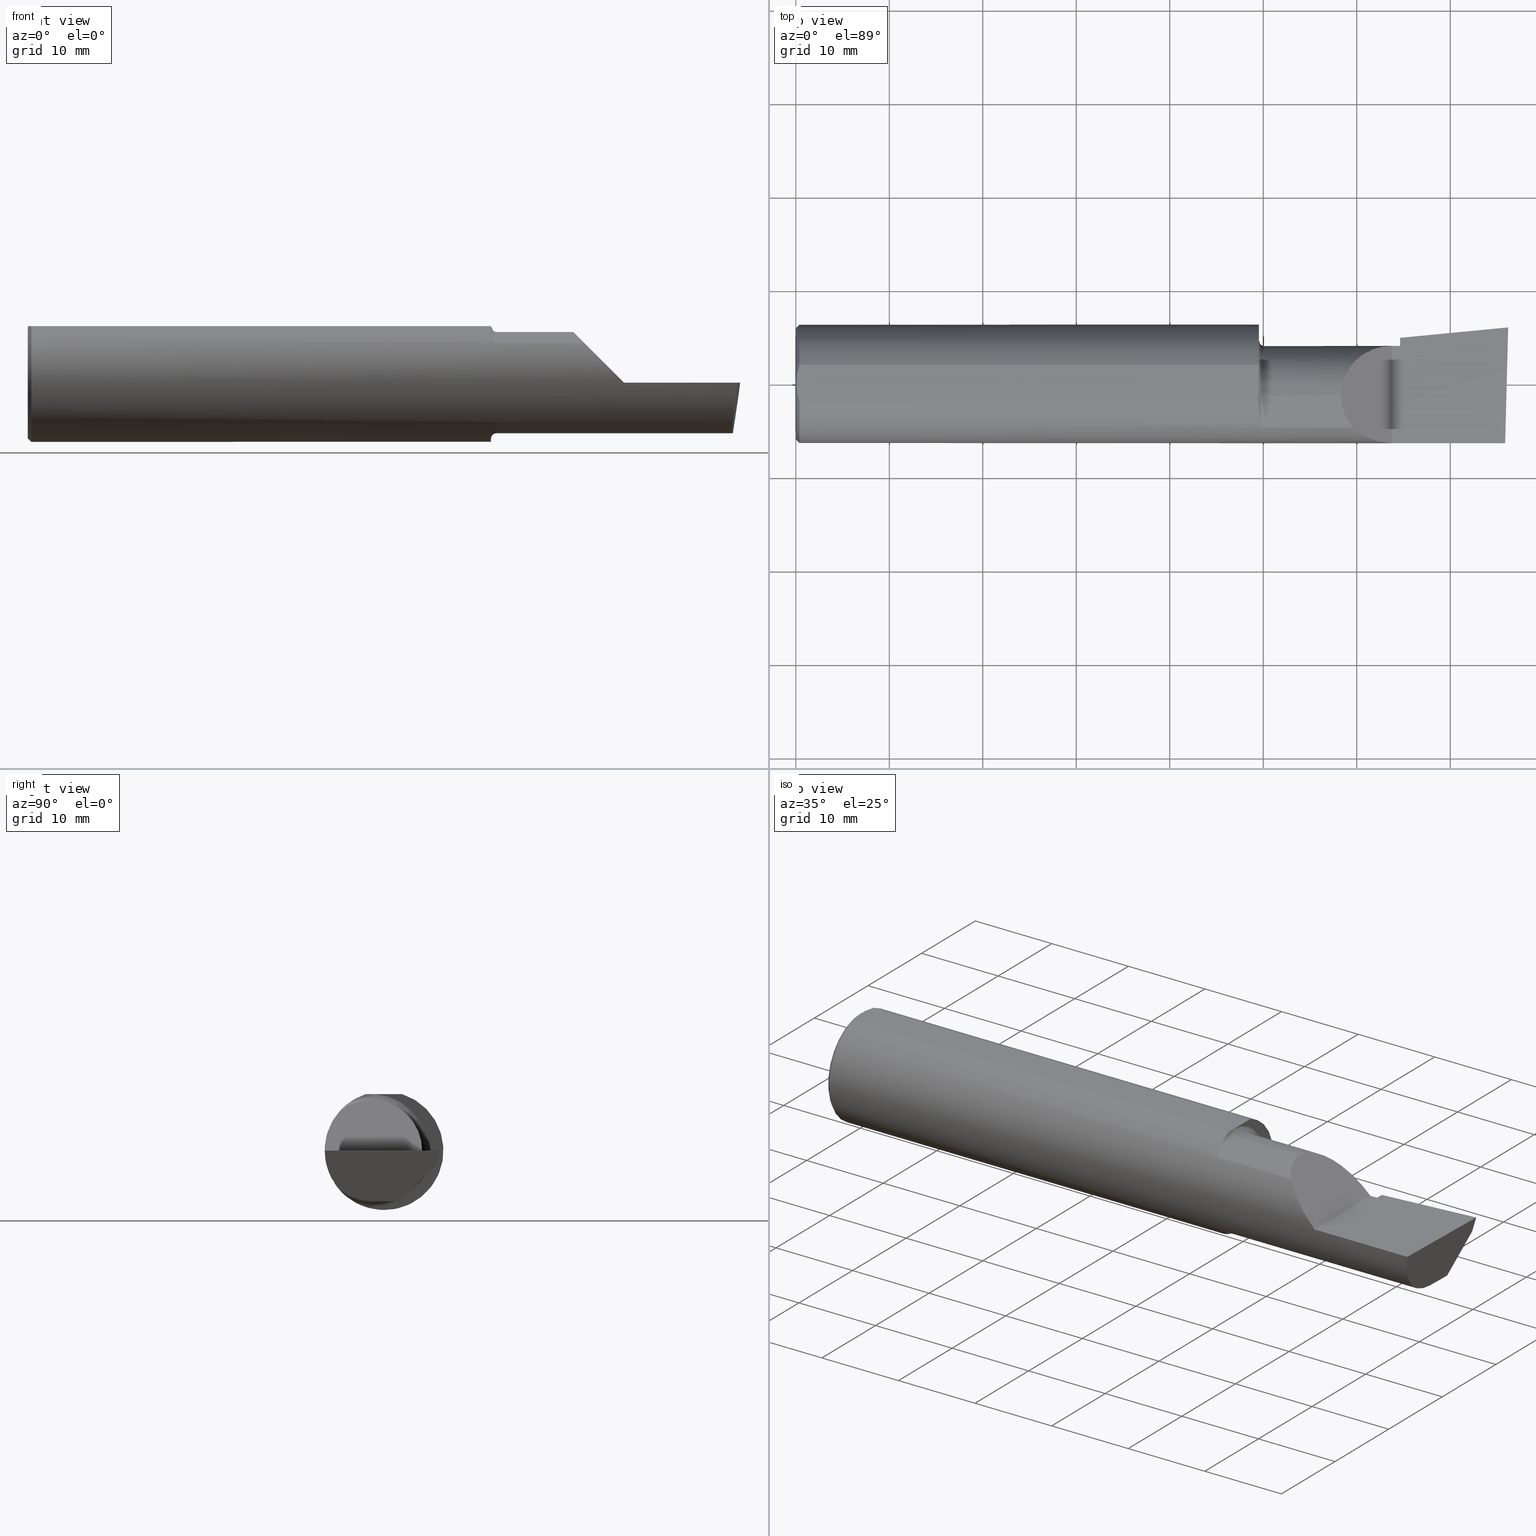
[diagram: canonical four-view strip — front | top / right | iso, engineering-drawing reading convention]
A machine part, canonical four-view strip (front | top / right | iso — engineering-drawing reading convention). The complete STEP part file that produces these views, byte-faithful:
ISO-10303-21;
HEADER;
FILE_DESCRIPTION (( 'STEP AP203' ),
    '1' );
FILE_NAME ('217558-B4901000.STEP',
    '2024-04-26T22:54:26',
    ( '' ),
    ( '' ),
    'SwSTEP 2.0',
    'SolidWorks 2022',
    '' );
FILE_SCHEMA (( 'CONFIG_CONTROL_DESIGN' ));
ENDSEC;

DATA;
#1 = ORIENTED_EDGE ( 'NONE', *, *, #66, .F. ) ;
#2 = DIRECTION ( 'NONE',  ( -0.000000000000000000, 1.000000000000000000, 1.224646799147353207E-16 ) ) ;
#3 = CARTESIAN_POINT ( 'NONE',  ( 0.000000000000000000, 0.000000000000000000, -0.2348499999999996424 ) ) ;
#4 = ORIENTED_EDGE ( 'NONE', *, *, #52, .T. ) ;
#5 = DIRECTION ( 'NONE',  ( 0.000000000000000000, 0.000000000000000000, -1.000000000000000000 ) ) ;
#6 = CARTESIAN_POINT ( 'NONE',  ( 1.950000000000000178, -0.05299999999999998462, 0.000000000000000000 ) ) ;
#7 = ORIENTED_EDGE ( 'NONE', *, *, #42, .F. ) ;
#8 = VECTOR ( 'NONE', #752, 39.37007874015748143 ) ;
#9 = EDGE_CURVE ( 'NONE', #589, #634, #36, .T. ) ;
#10 = CYLINDRICAL_SURFACE ( 'NONE', #743, 0.2131499999999999506 ) ;
#11 = CARTESIAN_POINT ( 'NONE',  ( 2.545000000000000373, 0.2148312740513257935, -0.01988118725737613932 ) ) ;
#12 = VERTEX_POINT ( 'NONE', #417 ) ;
#13 = PLANE ( 'NONE',  #48 ) ;
#14 = EDGE_CURVE ( 'NONE', #57, #413, #523, .T. ) ;
#15 = CARTESIAN_POINT ( 'NONE',  ( 1.975000000000000089, -0.05299999999999998462, 0.000000000000000000 ) ) ;
#16 = CARTESIAN_POINT ( 'NONE',  ( 1.951680550596499808, -0.1214972057705729636, 0.2186080375779522744 ) ) ;
#17 = CARTESIAN_POINT ( 'NONE',  ( 2.545000000000000373, 0.05698775240724726632, -0.1825804393148457716 ) ) ;
#18 = DIRECTION ( 'NONE',  ( 0.000000000000000000, 0.000000000000000000, 1.000000000000000000 ) ) ;
#19 = ORIENTED_EDGE ( 'NONE', *, *, #531, .F. ) ;
#20 = CALENDAR_DATE ( 2024, 26, 4 ) ;
#21 = VECTOR ( 'NONE', #499, 39.37007874015748143 ) ;
#22 = FACE_OUTER_BOUND ( 'NONE', #170, .T. ) ;
#23 = DIRECTION ( 'NONE',  ( 0.000000000000000000, 0.000000000000000000, 1.000000000000000000 ) ) ;
#24 = MECHANICAL_CONTEXT ( 'NONE', #146, 'mechanical' ) ;
#25 = CARTESIAN_POINT ( 'NONE',  ( 1.950000000000000178, 0.1851499999999999257, 0.000000000000000000 ) ) ;
#26 = DIRECTION ( 'NONE',  ( 0.000000000000000000, 0.000000000000000000, 1.000000000000000000 ) ) ;
#27 = VERTEX_POINT ( 'NONE', #351 ) ;
#28 =( NAMED_UNIT ( * ) SI_UNIT ( $, .STERADIAN. ) SOLID_ANGLE_UNIT ( ) );
#29 = CARTESIAN_POINT ( 'NONE',  ( 0.01499999999999999771, 0.000000000000000000, -0.2498499999999999888 ) ) ;
#30 = CARTESIAN_POINT ( 'NONE',  ( 1.950000000000000178, -0.05299999999999998462, 0.000000000000000000 ) ) ;
#31 = ORIENTED_EDGE ( 'NONE', *, *, #276, .F. ) ;
#32 = CALENDAR_DATE ( 2024, 26, 4 ) ;
#33 = CARTESIAN_POINT ( 'NONE',  ( 2.536975816846327891, 0.1338694103809225100, -0.1025372660271277742 ) ) ;
#34 = TOROIDAL_SURFACE ( 'NONE', #494, 0.2381499999999999173, 0.02499999999999992159 ) ;
#35 = AXIS2_PLACEMENT_3D ( 'NONE', #25, #224, #472 ) ;
#36 = B_SPLINE_CURVE_WITH_KNOTS ( 'NONE', 3,
 ( #568, #385, #623, #16, #461, #695, #152, #772, #712, #101, #173, #37, #778, #154, #408, #477 ),
 .UNSPECIFIED., .F., .F.,
 ( 4, 2, 2, 2, 2, 2, 2, 4 ),
 ( 0.0001034694911878118951, 0.0009591263138367389640, 0.001814783136485666019, 0.002670439959134593075, 0.003098268370459053133, 0.003312182576121286848, 0.003419139678952397635, 0.003526096781783507987 ),
 .UNSPECIFIED. ) ;
#37 = CARTESIAN_POINT ( 'NONE',  ( 1.969290397284158445, -0.1841927918507048623, 0.1688179232533559004 ) ) ;
#38 = ORIENTED_EDGE ( 'NONE', *, *, #202, .T. ) ;
#39 = EDGE_CURVE ( 'NONE', #379, #443, #506, .T. ) ;
#40 = CARTESIAN_POINT ( 'NONE',  ( 2.968492717492763777, -0.1868028301886794917, -0.1659208399614086338 ) ) ;
#41 = VERTEX_POINT ( 'NONE', #649 ) ;
#42 = EDGE_CURVE ( 'NONE', #722, #557, #378, .T. ) ;
#43 = CARTESIAN_POINT ( 'NONE',  ( 1.950000000000000178, -0.08036415094339657839, -0.2365726648265749632 ) ) ;
#44 = EDGE_LOOP ( 'NONE', ( #114, #718, #560, #336, #692 ) ) ;
#45 = CARTESIAN_POINT ( 'NONE',  ( 0.000000000000000000, 0.000000000000000000, 0.000000000000000000 ) ) ;
#46 = PLANE ( 'NONE',  #414 ) ;
#47 = AXIS2_PLACEMENT_3D ( 'NONE', #740, #455, #136 ) ;
#48 = AXIS2_PLACEMENT_3D ( 'NONE', #129, #434, #263 ) ;
#49 = ORIENTED_EDGE ( 'NONE', *, *, #299, .F. ) ;
#50 = ADVANCED_FACE ( 'NONE', ( #473 ), #282, .T. ) ;
#51 = CARTESIAN_POINT ( 'NONE',  ( 0.000000000000000000, -0.05299999999999998462, 0.000000000000000000 ) ) ;
#52 = EDGE_CURVE ( 'NONE', #27, #124, #715, .T. ) ;
#53 = CARTESIAN_POINT ( 'NONE',  ( 0.01499999999999999771, 0.000000000000000000, 0.000000000000000000 ) ) ;
#54 = ORIENTED_EDGE ( 'NONE', *, *, #81, .T. ) ;
#55 = DIRECTION ( 'NONE',  ( 0.000000000000000000, -0.2936076258024059582, -0.9559260233253795702 ) ) ;
#56 = CARTESIAN_POINT ( 'NONE',  ( 1.970138573936400350, -0.1849738682364327758, -0.1679602226613255145 ) ) ;
#57 = VERTEX_POINT ( 'NONE', #169 ) ;
#58 = CARTESIAN_POINT ( 'NONE',  ( 2.527186805775588851, 0.1926232675528999905, -6.829619984160658046E-17 ) ) ;
#59 = CARTESIAN_POINT ( 'NONE',  ( 1.969285582744839225, -0.1841881072713806022, -0.1688230283719353020 ) ) ;
#60 = VERTEX_POINT ( 'NONE', #412 ) ;
#61 = CIRCLE ( 'NONE', #143, 0.2131499999999999784 ) ;
#62 = ADVANCED_FACE ( 'NONE', ( #294 ), #34, .F. ) ;
#63 = CARTESIAN_POINT ( 'NONE',  ( 3.000000000000000444, 0.2998500000000000609, 0.2378499999999999504 ) ) ;
#64 = AXIS2_PLACEMENT_3D ( 'NONE', #575, #95, #707 ) ;
#65 = CARTESIAN_POINT ( 'NONE',  ( 1.975000000000000089, -0.05299999999999998462, 0.2131499999999999506 ) ) ;
#66 = EDGE_CURVE ( 'NONE', #421, #722, #677, .T. ) ;
#67 = ORIENTED_EDGE ( 'NONE', *, *, #334, .F. ) ;
#68 = APPROVAL ( #475, 'UNSPECIFIED' ) ;
#69 = EDGE_CURVE ( 'NONE', #237, #546, #218, .T. ) ;
#70 = DIRECTION ( 'NONE',  ( 0.000000000000000000, 0.000000000000000000, 1.000000000000000000 ) ) ;
#71 = CARTESIAN_POINT ( 'NONE',  ( 2.968492717492763777, -0.1868028301886794917, -0.1659208399614086338 ) ) ;
#72 = ORIENTED_EDGE ( 'NONE', *, *, #276, .T. ) ;
#73 = UNCERTAINTY_MEASURE_WITH_UNIT (LENGTH_MEASURE( 1.000000000000000082E-05 ), #696, 'distance_accuracy_value', 'NONE');
#74 = CARTESIAN_POINT ( 'NONE',  ( 2.545000000000000373, 0.05698775240724726632, -0.1825804393148457716 ) ) ;
#75 = CARTESIAN_POINT ( 'NONE',  ( 1.950000900032402340, -0.05299999999999998462, 0.2378500000000221548 ) ) ;
#76 = VERTEX_POINT ( 'NONE', #697 ) ;
#77 = AXIS2_PLACEMENT_3D ( 'NONE', #153, #228, #765 ) ;
#78 = EDGE_CURVE ( 'NONE', #310, #566, #528, .T. ) ;
#79 = VECTOR ( 'NONE', #562, 39.37007874015748143 ) ;
#80 = DIRECTION ( 'NONE',  ( -1.000000000000000000, -0.000000000000000000, -0.000000000000000000 ) ) ;
#81 = EDGE_CURVE ( 'NONE', #504, #773, #204, .T. ) ;
#82 = APPROVAL_PERSON_ORGANIZATION ( #397, #68, #354 ) ;
#83 = ORIENTED_EDGE ( 'NONE', *, *, #445, .T. ) ;
#84 = CARTESIAN_POINT ( 'NONE',  ( 0.000000000000000000, -0.05299999999999998462, 0.000000000000000000 ) ) ;
#85 = DIRECTION ( 'NONE',  ( -1.000000000000000000, -0.000000000000000000, -0.000000000000000000 ) ) ;
#86 = ORIENTED_EDGE ( 'NONE', *, *, #669, .T. ) ;
#87 = CARTESIAN_POINT ( 'NONE',  ( 2.510000000000000231, -0.2500000000000000555, 6.000769315822035917E-17 ) ) ;
#88 = EDGE_LOOP ( 'NONE', ( #363, #54, #615, #618, #327, #469, #767, #611, #49, #7, #215, #457, #98 ) ) ;
#89 = VECTOR ( 'NONE', #269, 39.37007874015748143 ) ;
#90 =( NAMED_UNIT ( * ) PLANE_ANGLE_UNIT ( ) SI_UNIT ( $, .RADIAN. ) );
#91 = AXIS2_PLACEMENT_3D ( 'NONE', #45, #714, #430 ) ;
#92 = CARTESIAN_POINT ( 'NONE',  ( 2.532795049205045501, 0.1343794326159073738, -0.1015966078791038646 ) ) ;
#93 = CARTESIAN_POINT ( 'NONE',  ( 0.008199648822849016708, 0.05156445313451110679, 0.2378500000000000059 ) ) ;
#94 = CC_DESIGN_APPROVAL ( #68, ( #780 ) ) ;
#95 = DIRECTION ( 'NONE',  ( 0.000000000000000000, 0.000000000000000000, 1.000000000000000000 ) ) ;
#96 = CARTESIAN_POINT ( 'NONE',  ( 2.510000000000000231, 0.1601499999999999035, 6.000769315822035917E-17 ) ) ;
#97 = CARTESIAN_POINT ( 'NONE',  ( 2.973097331270539989, -0.2278791102234774546, -0.1196748990301325227 ) ) ;
#98 = ORIENTED_EDGE ( 'NONE', *, *, #220, .F. ) ;
#99 = APPROVAL_STATUS ( 'not_yet_approved' ) ;
#100 = DIRECTION ( 'NONE',  ( 0.000000000000000000, -1.000000000000000000, 1.707404996040164512E-16 ) ) ;
#101 = CARTESIAN_POINT ( 'NONE',  ( 1.965857071685141566, -0.1799228808997977436, 0.1733778622677450698 ) ) ;
#102 = ORIENTED_EDGE ( 'NONE', *, *, #391, .T. ) ;
#103 = APPLICATION_PROTOCOL_DEFINITION ( 'international standard', 'config_control_design', 1994, #146 ) ;
#104 = CARTESIAN_POINT ( 'NONE',  ( 0.000000000000000000, -0.05299999999999998462, 0.2131499999999999506 ) ) ;
#105 = CIRCLE ( 'NONE', #265, 0.2498499999999999888 ) ;
#106 = CC_DESIGN_DATE_AND_TIME_ASSIGNMENT ( #410, #405, ( #444 ) ) ;
#107 = CARTESIAN_POINT ( 'NONE',  ( 0.000000000000000000, 0.000000000000000000, 0.000000000000000000 ) ) ;
#108 = LOCAL_TIME ( 15, 54, 26.00000000000000000, #232 ) ;
#109 = MANIFOLD_SOLID_BREP ( 'Extrude7', #757 ) ;
#110 = PLANE ( 'NONE',  #365 ) ;
#111 = DIRECTION ( 'NONE',  ( -1.000000000000000000, -0.000000000000000000, -0.000000000000000000 ) ) ;
#112 = CARTESIAN_POINT ( 'NONE',  ( 1.950000000000000178, -0.06494989539703015236, 0.2378500000000000059 ) ) ;
#113 = DIRECTION ( 'NONE',  ( -1.000000000000000000, -0.000000000000000000, -0.000000000000000000 ) ) ;
#114 = ORIENTED_EDGE ( 'NONE', *, *, #189, .F. ) ;
#115 = EDGE_CURVE ( 'NONE', #413, #629, #236, .T. ) ;
#116 = CARTESIAN_POINT ( 'NONE',  ( 2.992127980275558041, 0.2189633278254521642, -0.05999999999999998390 ) ) ;
#117 = CARTESIAN_POINT ( 'NONE',  ( 1.950000000000000178, -0.04105010460296977526, 0.2378500000000000059 ) ) ;
#118 = AXIS2_PLACEMENT_3D ( 'NONE', #667, #737, #606 ) ;
#119 = CIRCLE ( 'NONE', #703, 0.02499999999999990424 ) ;
#120 = ORIENTED_EDGE ( 'NONE', *, *, #39, .T. ) ;
#121 = DIRECTION ( 'NONE',  ( -0.000000000000000000, 0.000000000000000000, 1.000000000000000000 ) ) ;
#122 = CARTESIAN_POINT ( 'NONE',  ( 1.949999999999989964, -0.1016924291521888873, -0.2293274111511740820 ) ) ;
#123 = EDGE_CURVE ( 'NONE', #149, #57, #577, .T. ) ;
#124 = VERTEX_POINT ( 'NONE', #583 ) ;
#125 = CARTESIAN_POINT ( 'NONE',  ( 2.963949576795524177, -0.1303119248116117457, -0.2149526021148822907 ) ) ;
#126 = CARTESIAN_POINT ( 'NONE',  ( 2.966195468375009803, -0.05299999999999998462, -0.2131499999999999229 ) ) ;
#127 = ORIENTED_EDGE ( 'NONE', *, *, #314, .F. ) ;
#128 = EDGE_CURVE ( 'NONE', #589, #657, #689, .T. ) ;
#129 = CARTESIAN_POINT ( 'NONE',  ( 2.545000000000000373, 0.1943384830701196109, 0.000000000000000000 ) ) ;
#130 = CARTESIAN_POINT ( 'NONE',  ( 2.535684672073135637, 0.1043695517189378863, -0.2900000000000000355 ) ) ;
#131 = ORIENTED_EDGE ( 'NONE', *, *, #754, .F. ) ;
#132 = DIRECTION ( 'NONE',  ( 0.000000000000000000, 0.000000000000000000, 1.000000000000000000 ) ) ;
#133 = CARTESIAN_POINT ( 'NONE',  ( 2.510000000000000231, -0.2498499999999999610, 6.000769315822035917E-17 ) ) ;
#134 = EDGE_LOOP ( 'NONE', ( #579, #83, #339, #753 ) ) ;
#135 = DIRECTION ( 'NONE',  ( 1.000000000000000000, 0.000000000000000000, 0.000000000000000000 ) ) ;
#136 = DIRECTION ( 'NONE',  ( 0.000000000000000000, 0.000000000000000000, -1.000000000000000000 ) ) ;
#137 = ORIENTED_EDGE ( 'NONE', *, *, #732, .T. ) ;
#138 = EDGE_CURVE ( 'NONE', #657, #167, #489, .T. ) ;
#139 = CARTESIAN_POINT ( 'NONE',  ( 2.541916792879878706, 0.05627666367902759564, -0.1830073912696825456 ) ) ;
#140 = CARTESIAN_POINT ( 'NONE',  ( 2.344079160038586185, -0.1868028301886760500, 0.1659208399614119644 ) ) ;
#141 = ORIENTED_EDGE ( 'NONE', *, *, #66, .T. ) ;
#142 = PRODUCT ( '217558-B4901000', '217558-B4901000', '', ( #24 ) ) ;
#143 = AXIS2_PLACEMENT_3D ( 'NONE', #486, #113, #431 ) ;
#144 = VECTOR ( 'NONE', #642, 39.37007874015748143 ) ;
#145 = CARTESIAN_POINT ( 'NONE',  ( 1.950000000000000178, 0.000000000000000000, 0.000000000000000000 ) ) ;
#146 = APPLICATION_CONTEXT ( 'configuration controlled 3d designs of mechanical parts and assemblies' ) ;
#147 = ORGANIZATION ( 'UNSPECIFIED', 'UNSPECIFIED', '' ) ;
#148 = LINE ( 'NONE', #512, #540 ) ;
#149 = VERTEX_POINT ( 'NONE', #594 ) ;
#150 = CALENDAR_DATE ( 2024, 26, 4 ) ;
#151 = CARTESIAN_POINT ( 'NONE',  ( 2.296849999999997838, -0.05299999999999998462, 0.2131499999999999506 ) ) ;
#152 = CARTESIAN_POINT ( 'NONE',  ( 1.957343635746627397, -0.1582230848692695313, 0.1936715022401950537 ) ) ;
#153 = CARTESIAN_POINT ( 'NONE',  ( 3.000000000000000444, -0.2500000000000000555, -6.829619984160658046E-17 ) ) ;
#154 = CARTESIAN_POINT ( 'NONE',  ( 1.972243150415551538, -0.1862809296394745129, 0.1665094106511991190 ) ) ;
#155 = ORIENTED_EDGE ( 'NONE', *, *, #115, .T. ) ;
#156 = AXIS2_PLACEMENT_3D ( 'NONE', #527, #704, #23 ) ;
#157 = APPROVAL_DATE_TIME ( #637, #302 ) ;
#158 = AXIS2_PLACEMENT_3D ( 'NONE', #63, #505, #319 ) ;
#159 = DIRECTION ( 'NONE',  ( 9.717439401676380705E-34, 1.707404996040164512E-16, 1.000000000000000000 ) ) ;
#160 = ADVANCED_FACE ( 'NONE', ( #251 ), #46, .T. ) ;
#161 = CARTESIAN_POINT ( 'NONE',  ( 0.01499999999999999771, 0.000000000000000000, 0.000000000000000000 ) ) ;
#162 = ORIENTED_EDGE ( 'NONE', *, *, #69, .T. ) ;
#163 = CALENDAR_DATE ( 2024, 26, 4 ) ;
#164 = DIRECTION ( 'NONE',  ( 0.000000000000000000, 0.000000000000000000, 1.000000000000000000 ) ) ;
#165 = DIRECTION ( 'NONE',  ( 0.9953961983671800740, 0.09584575252021028391, -1.516874858616837700E-17 ) ) ;
#166 = EDGE_CURVE ( 'NONE', #725, #549, #61, .T. ) ;
#167 = VERTEX_POINT ( 'NONE', #424 ) ;
#168 = LENGTH_MEASURE_WITH_UNIT ( LENGTH_MEASURE( 0.02539999999999999897 ), #739 );
#169 = CARTESIAN_POINT ( 'NONE',  ( 2.545000000000000373, 0.1943384830701264387, 7.172377113401736184E-16 ) ) ;
#170 = EDGE_LOOP ( 'NONE', ( #372, #206, #687, #746, #595, #19 ) ) ;
#171 = CARTESIAN_POINT ( 'NONE',  ( 2.296849999999997838, -0.05299999999999998462, 0.2131499999999999506 ) ) ;
#172 = AXIS2_PLACEMENT_3D ( 'NONE', #30, #287, #241 ) ;
#173 = CARTESIAN_POINT ( 'NONE',  ( 1.967018584423772198, -0.1817363555988614765, 0.1714722504633805766 ) ) ;
#174 = ORIENTED_EDGE ( 'NONE', *, *, #501, .F. ) ;
#175 = FACE_OUTER_BOUND ( 'NONE', #741, .T. ) ;
#176 = VERTEX_POINT ( 'NONE', #126 ) ;
#177 = DIRECTION ( 'NONE',  ( -1.000000000000000000, 0.000000000000000000, -0.000000000000000000 ) ) ;
#178 = CARTESIAN_POINT ( 'NONE',  ( 0.01499999999999999771, 3.059780027669661931E-17, 0.2498499999999999888 ) ) ;
#179 = ORIENTED_EDGE ( 'NONE', *, *, #123, .T. ) ;
#180 = B_SPLINE_CURVE_WITH_KNOTS ( 'NONE', 3,
 ( #75, #331, #569, #749 ),
 .UNSPECIFIED., .F., .F.,
 ( 4, 4 ),
 ( 0.4999999999997256084, 1.000000000000000000 ),
 .UNSPECIFIED. ) ;
#181 = PLANE ( 'NONE',  #771 ) ;
#182 = DIRECTION ( 'NONE',  ( 0.000000000000000000, 0.000000000000000000, -1.000000000000000000 ) ) ;
#183 = VECTOR ( 'NONE', #466, 39.37007874015748143 ) ;
#184 = TOROIDAL_SURFACE ( 'NONE', #401, 0.2381499999999999173, 0.02499999999999992159 ) ;
#185 = ORIENTED_EDGE ( 'NONE', *, *, #671, .F. ) ;
#186 = CARTESIAN_POINT ( 'NONE',  ( 0.003000000000000035624, 4.000211044293764417E-17, 0.2378500000000000059 ) ) ;
#187 = DIRECTION ( 'NONE',  ( 0.000000000000000000, -1.000000000000000000, 1.138839417068644240E-16 ) ) ;
#188 = ORIENTED_EDGE ( 'NONE', *, *, #222, .T. ) ;
#189 = EDGE_CURVE ( 'NONE', #566, #421, #721, .T. ) ;
#190 = DIRECTION ( 'NONE',  ( 0.000000000000000000, 0.000000000000000000, 1.000000000000000000 ) ) ;
#191 = EDGE_CURVE ( 'NONE', #634, #379, #653, .T. ) ;
#192 = CARTESIAN_POINT ( 'NONE',  ( 2.528944985009564217, 0.1743638780700109969, -0.05999999999999998390 ) ) ;
#193 = ORIENTED_EDGE ( 'NONE', *, *, #81, .F. ) ;
#194 = DIRECTION ( 'NONE',  ( 0.000000000000000000, 1.000000000000000000, 0.000000000000000000 ) ) ;
#195 = VECTOR ( 'NONE', #515, 39.37007874015748143 ) ;
#196 = ORIENTED_EDGE ( 'NONE', *, *, #343, .T. ) ;
#197 = TOROIDAL_SURFACE ( 'NONE', #640, 0.2381499999999999173, 0.02499999999999992159 ) ;
#198 = CARTESIAN_POINT ( 'NONE',  ( 1.975000000000000089, -0.05299999999999998462, 0.000000000000000000 ) ) ;
#199 = ADVANCED_FACE ( 'NONE', ( #175 ), #639, .T. ) ;
#200 = DIRECTION ( 'NONE',  ( 0.000000000000000000, 0.000000000000000000, 1.000000000000000000 ) ) ;
#201 = ORIENTED_EDGE ( 'NONE', *, *, #644, .F. ) ;
#202 = EDGE_CURVE ( 'NONE', #27, #725, #374, .T. ) ;
#203 = DIRECTION ( 'NONE',  ( -1.000000000000000000, -0.000000000000000000, -0.000000000000000000 ) ) ;
#204 =( BOUNDED_CURVE ( )  B_SPLINE_CURVE ( 3, ( #40, #97, #342, #297 ),
 .UNSPECIFIED., .F., .T. ) 
 B_SPLINE_CURVE_WITH_KNOTS ( ( 4, 4 ),
 ( 0.6344818218799018750, 1.360746882514782818 ),
 .UNSPECIFIED. ) 
 CURVE ( )  GEOMETRIC_REPRESENTATION_ITEM ( )  RATIONAL_B_SPLINE_CURVE ( ( 1.000000000000000000, 0.9565258159410998662, 0.9565258159410998662, 1.000000000000000000 ) ) 
 REPRESENTATION_ITEM ( '' )  );
#205 = CARTESIAN_POINT ( 'NONE',  ( 1.950000000000000178, 0.07650098038587503646, 0.2378500000000000059 ) ) ;
#206 = ORIENTED_EDGE ( 'NONE', *, *, #452, .T. ) ;
#207 = CARTESIAN_POINT ( 'NONE',  ( 2.344079160038586185, -0.1868028301886760500, 0.1659208399614119644 ) ) ;
#208 = EDGE_LOOP ( 'NONE', ( #4, #676, #570, #137 ) ) ;
#209 = PRODUCT_DEFINITION_SHAPE ( 'NONE', 'NONE',  #780 ) ;
#210 =( BOUNDED_CURVE ( )  B_SPLINE_CURVE ( 3, ( #17, #558, #139, #272 ),
 .UNSPECIFIED., .F., .T. ) 
 B_SPLINE_CURVE_WITH_KNOTS ( ( 4, 4 ),
 ( 3.399950576546885372, 3.405787439796295057 ),
 .UNSPECIFIED. ) 
 CURVE ( )  GEOMETRIC_REPRESENTATION_ITEM ( )  RATIONAL_B_SPLINE_CURVE ( ( 1.000000000000000000, 0.9999971609209656886, 0.9999971609209656886, 1.000000000000000000 ) ) 
 REPRESENTATION_ITEM ( '' )  );
#211 = VECTOR ( 'NONE', #165, 39.37007874015748854 ) ;
#212 = COORDINATED_UNIVERSAL_TIME_OFFSET ( 8, 0, .BEHIND. ) ;
#213 = LOCAL_TIME ( 15, 54, 26.00000000000000000, #580 ) ;
#214 = CARTESIAN_POINT ( 'NONE',  ( 2.545000000000000373, 0.1328281892403428976, -0.1044069278527785111 ) ) ;
#215 = ORIENTED_EDGE ( 'NONE', *, *, #370, .T. ) ;
#216 = EDGE_CURVE ( 'NONE', #298, #60, #366, .T. ) ;
#217 = DATE_AND_TIME ( #465, #213 ) ;
#218 = B_SPLINE_CURVE_WITH_KNOTS ( 'NONE', 3,
 ( #482, #355, #347, #591 ),
 .UNSPECIFIED., .F., .F.,
 ( 4, 4 ),
 ( 0.000000000000000000, 0.4999999999997256084 ),
 .UNSPECIFIED. ) ;
#219 = LINE ( 'NONE', #346, #565 ) ;
#220 = EDGE_CURVE ( 'NONE', #76, #654, #503, .T. ) ;
#221 = DIRECTION ( 'NONE',  ( 0.000000000000000000, 0.000000000000000000, 1.000000000000000000 ) ) ;
#222 = EDGE_CURVE ( 'NONE', #654, #348, #573, .T. ) ;
#223 = PERSON ( 'UNSPECIFIED', 'UNSPECIFIED', 'UNSPECIFIED', ('UNSPECIFIED'), ('UNSPECIFIED'), ('UNSPECIFIED') ) ;
#224 = DIRECTION ( 'NONE',  ( 1.000000000000000000, 0.000000000000000000, 0.000000000000000000 ) ) ;
#225 = DIRECTION ( 'NONE',  ( 0.000000000000000000, 0.2936076258024059582, 0.9559260233253795702 ) ) ;
#226 = ORIENTED_EDGE ( 'NONE', *, *, #790, .T. ) ;
#227 = PERSON_AND_ORGANIZATION_ROLE ( 'classification_officer' ) ;
#228 = DIRECTION ( 'NONE',  ( -2.618446795914836237E-16, 0.000000000000000000, -1.000000000000000000 ) ) ;
#229 = ADVANCED_FACE ( 'NONE', ( #548 ), #435, .F. ) ;
#230 = DIRECTION ( 'NONE',  ( -1.000000000000000000, -0.000000000000000000, -0.000000000000000000 ) ) ;
#231 = ADVANCED_FACE ( 'NONE', ( #543 ), #244, .T. ) ;
#232 = COORDINATED_UNIVERSAL_TIME_OFFSET ( 8, 0, .BEHIND. ) ;
#233 = DIRECTION ( 'NONE',  ( 0.02617694830786375729, 0.9996573249755575929, -6.752493720234686897E-18 ) ) ;
#234 = CARTESIAN_POINT ( 'NONE',  ( 0.004092330037930667214, 0.02606142970188504368, 0.2378500000000000059 ) ) ;
#235 = FACE_OUTER_BOUND ( 'NONE', #266, .T. ) ;
#236 = LINE ( 'NONE', #762, #468 ) ;
#237 = VERTEX_POINT ( 'NONE', #117 ) ;
#238 =( BOUNDED_CURVE ( )  B_SPLINE_CURVE ( 3, ( #258, #666, #601, #171 ),
 .UNSPECIFIED., .F., .F. ) 
 B_SPLINE_CURVE_WITH_KNOTS ( ( 4, 4 ),
 ( 5.604538515477369032, 6.283185307179586232 ),
 .UNSPECIFIED. ) 
 CURVE ( )  GEOMETRIC_REPRESENTATION_ITEM ( )  RATIONAL_B_SPLINE_CURVE ( ( 1.000000000000000000, 0.9619867256453048521, 0.9619867256453048521, 1.000000000000000000 ) ) 
 REPRESENTATION_ITEM ( '' )  );
#239 = DIRECTION ( 'NONE',  ( 0.000000000000000000, 0.000000000000000000, -1.000000000000000000 ) ) ;
#240 = AXIS2_PLACEMENT_3D ( 'NONE', #492, #672, #728 ) ;
#241 = DIRECTION ( 'NONE',  ( 0.000000000000000000, 0.000000000000000000, 1.000000000000000000 ) ) ;
#242 = ORIENTED_EDGE ( 'NONE', *, *, #723, .T. ) ;
#243 =( BOUNDED_CURVE ( )  B_SPLINE_CURVE ( 3, ( #92, #33, #581, #576 ),
 .UNSPECIFIED., .F., .T. ) 
 B_SPLINE_CURVE_WITH_KNOTS ( ( 4, 4 ),
 ( 2.868174658477174344, 2.883234730632702636 ),
 .UNSPECIFIED. ) 
 CURVE ( )  GEOMETRIC_REPRESENTATION_ITEM ( )  RATIONAL_B_SPLINE_CURVE ( ( 1.000000000000000000, 0.9999810996081960335, 0.9999810996081960335, 1.000000000000000000 ) ) 
 REPRESENTATION_ITEM ( '' )  );
#244 = PLANE ( 'NONE',  #484 ) ;
#245 = EDGE_LOOP ( 'NONE', ( #188, #673, #359, #791 ) ) ;
#246 = CARTESIAN_POINT ( 'NONE',  ( 0.01499999999998188026, -0.07650098038590467941, 0.2378500000000000059 ) ) ;
#247 = DIRECTION ( 'NONE',  ( 1.000000000000000000, 0.000000000000000000, 0.000000000000000000 ) ) ;
#248 = EDGE_LOOP ( 'NONE', ( #516, #185, #201, #429, #536, #193 ) ) ;
#249 = SHAPE_DEFINITION_REPRESENTATION ( #209, #535 ) ;
#250 = CARTESIAN_POINT ( 'NONE',  ( 1.975000000000000089, -0.1868028301886792697, 0.1659208399614088003 ) ) ;
#251 = FACE_OUTER_BOUND ( 'NONE', #487, .T. ) ;
#252 = VECTOR ( 'NONE', #785, 39.37007874015748854 ) ;
#253 = ADVANCED_FACE ( 'NONE', ( #496 ), #277, .T. ) ;
#254 = AXIS2_PLACEMENT_3D ( 'NONE', #51, #537, #719 ) ;
#255 = ORIENTED_EDGE ( 'NONE', *, *, #437, .F. ) ;
#256 = CC_DESIGN_PERSON_AND_ORGANIZATION_ASSIGNMENT ( #526, #227, ( #444 ) ) ;
#257 = LOCAL_TIME ( 15, 54, 26.00000000000000000, #631 ) ;
#258 = CARTESIAN_POINT ( 'NONE',  ( 2.344079160038586185, -0.1868028301886760500, 0.1659208399614119644 ) ) ;
#259 = CARTESIAN_POINT ( 'NONE',  ( 1.975000000000000089, -0.1868028301886792142, -0.1659208399614088281 ) ) ;
#260 = DIRECTION ( 'NONE',  ( 0.000000000000000000, 0.000000000000000000, 1.000000000000000000 ) ) ;
#261 = DIRECTION ( 'NONE',  ( 0.7071067811865391350, 0.000000000000000000, -0.7071067811865558994 ) ) ;
#262 = ORIENTED_EDGE ( 'NONE', *, *, #407, .F. ) ;
#263 = DIRECTION ( 'NONE',  ( -0.000000000000000000, 0.000000000000000000, 1.000000000000000000 ) ) ;
#264 = CARTESIAN_POINT ( 'NONE',  ( 2.964907988924524673, -0.1021668565906569681, -0.2131499999999999784 ) ) ;
#265 = AXIS2_PLACEMENT_3D ( 'NONE', #564, #622, #625 ) ;
#266 = EDGE_LOOP ( 'NONE', ( #710, #519, #295, #174 ) ) ;
#267 = VECTOR ( 'NONE', #670, 39.37007874015748143 ) ;
#268 = CARTESIAN_POINT ( 'NONE',  ( 0.000000000000000000, -0.05299999999999996381, -0.2131499999999999506 ) ) ;
#269 = DIRECTION ( 'NONE',  ( -1.000000000000000000, -0.000000000000000000, -0.000000000000000000 ) ) ;
#270 = ORIENTED_EDGE ( 'NONE', *, *, #128, .T. ) ;
#271 = EDGE_CURVE ( 'NONE', #289, #389, #423, .T. ) ;
#272 = CARTESIAN_POINT ( 'NONE',  ( 2.540349815208490014, 0.05592018782259767368, -0.1832193089843151823 ) ) ;
#273 = LINE ( 'NONE', #690, #303 ) ;
#274 = VERTEX_POINT ( 'NONE', #214 ) ;
#275 = ORIENTED_EDGE ( 'NONE', *, *, #706, .T. ) ;
#276 = EDGE_CURVE ( 'NONE', #149, #629, #325, .T. ) ;
#277 = CONICAL_SURFACE ( 'NONE', #599, 0.2498499999999999888, 0.7853981633974601584 ) ;
#278 = EDGE_CURVE ( 'NONE', #310, #557, #680, .T. ) ;
#279 = DATE_AND_TIME ( #20, #257 ) ;
#280 = CARTESIAN_POINT ( 'NONE',  ( 2.385139620819824113, 0.1601499999999999591, 0.1248603791801747992 ) ) ;
#281 = PERSON_AND_ORGANIZATION ( #223, #147 ) ;
#282 = CYLINDRICAL_SURFACE ( 'NONE', #290, 0.2131499999999999506 ) ;
#283 = ORIENTED_EDGE ( 'NONE', *, *, #311, .T. ) ;
#284 = PERSON_AND_ORGANIZATION_ROLE ( 'design_supplier' ) ;
#285 = EDGE_CURVE ( 'NONE', #443, #76, #795, .T. ) ;
#286 = DIRECTION ( 'NONE',  ( -1.000000000000000000, -0.000000000000000000, -0.000000000000000000 ) ) ;
#287 = DIRECTION ( 'NONE',  ( -1.000000000000000000, -0.000000000000000000, -0.000000000000000000 ) ) ;
#288 = EDGE_CURVE ( 'NONE', #41, #654, #664, .T. ) ;
#289 = VERTEX_POINT ( 'NONE', #446 ) ;
#290 = AXIS2_PLACEMENT_3D ( 'NONE', #766, #587, #221 ) ;
#291 = DATE_AND_TIME ( #32, #542 ) ;
#292 =( GEOMETRIC_REPRESENTATION_CONTEXT ( 3 ) GLOBAL_UNCERTAINTY_ASSIGNED_CONTEXT ( ( #73 ) ) GLOBAL_UNIT_ASSIGNED_CONTEXT ( ( #696, #90, #28 ) ) REPRESENTATION_CONTEXT ( 'NONE', 'WORKASPACE' ) );
#293 = PLANE ( 'NONE',  #35 ) ;
#294 = FACE_OUTER_BOUND ( 'NONE', #729, .T. ) ;
#295 = ORIENTED_EDGE ( 'NONE', *, *, #531, .T. ) ;
#296 = CARTESIAN_POINT ( 'NONE',  ( 2.987226101480004559, -0.2496655036952227791, -6.495142247650418772E-17 ) ) ;
#297 = CARTESIAN_POINT ( 'NONE',  ( 2.987221270274237561, -0.2498499999999999888, -6.495017623931042258E-17 ) ) ;
#298 = VERTEX_POINT ( 'NONE', #614 ) ;
#299 = EDGE_CURVE ( 'NONE', #557, #509, #105, .T. ) ;
#300 = CARTESIAN_POINT ( 'NONE',  ( 2.983714411583731962, 0.1632262006094488127, -0.1166167083458048009 ) ) ;
#301 = CARTESIAN_POINT ( 'NONE',  ( 2.528944985009564217, 0.1743638780700109969, -0.05999999999999998390 ) ) ;
#302 = APPROVAL ( #521, 'UNSPECIFIED' ) ;
#303 = VECTOR ( 'NONE', #335, 39.37007874015748143 ) ;
#304 = FACE_OUTER_BOUND ( 'NONE', #134, .T. ) ;
#305 = DIRECTION ( 'NONE',  ( 0.000000000000000000, -0.6963153109074925462, -0.7177360153954948085 ) ) ;
#306 = ORIENTED_EDGE ( 'NONE', *, *, #285, .T. ) ;
#307 = CC_DESIGN_APPROVAL ( #337, ( #444 ) ) ;
#308 = DIRECTION ( 'NONE',  ( 0.09165774897393343112, -0.9519021185660614393, 0.2923717047227302746 ) ) ;
#309 = CARTESIAN_POINT ( 'NONE',  ( 0.01499999999999999771, 0.000000000000000000, 0.000000000000000000 ) ) ;
#310 = VERTEX_POINT ( 'NONE', #3 ) ;
#311 = EDGE_CURVE ( 'NONE', #274, #149, #381, .T. ) ;
#312 = CARTESIAN_POINT ( 'NONE',  ( 2.545000000000000373, 0.1943384830701196109, 0.000000000000000000 ) ) ;
#313 = CARTESIAN_POINT ( 'NONE',  ( 1.965875558094660525, -0.1799506819598037100, -0.1733486322212183239 ) ) ;
#314 = EDGE_CURVE ( 'NONE', #546, #657, #180, .T. ) ;
#315 = ORIENTED_EDGE ( 'NONE', *, *, #14, .T. ) ;
#316 = LINE ( 'NONE', #550, #428 ) ;
#317 = CARTESIAN_POINT ( 'NONE',  ( 1.961285743882607902, -0.1704402150608113897, -0.1827701868778698890 ) ) ;
#318 = ORIENTED_EDGE ( 'NONE', *, *, #285, .F. ) ;
#319 = DIRECTION ( 'NONE',  ( 0.000000000000000000, 1.000000000000000000, -1.138839417068644240E-16 ) ) ;
#320 = LINE ( 'NONE', #517, #89 ) ;
#321 = ORIENTED_EDGE ( 'NONE', *, *, #69, .F. ) ;
#322 = CARTESIAN_POINT ( 'NONE',  ( 3.000000000000000444, -0.05299999999999998462, -0.2131499999999999229 ) ) ;
#323 = ORIENTED_EDGE ( 'NONE', *, *, #9, .T. ) ;
#324 = CARTESIAN_POINT ( 'NONE',  ( 2.540349815208490014, 0.05592018782259767368, -0.1832193089843151823 ) ) ;
#325 = LINE ( 'NONE', #440, #563 ) ;
#326 = VECTOR ( 'NONE', #286, 39.37007874015748143 ) ;
#327 = ORIENTED_EDGE ( 'NONE', *, *, #478, .F. ) ;
#328 = AXIS2_PLACEMENT_3D ( 'NONE', #145, #135, #5 ) ;
#329 = DIRECTION ( 'NONE',  ( -1.000000000000000000, -0.000000000000000000, -0.000000000000000000 ) ) ;
#330 = APPROVAL_PERSON_ORGANIZATION ( #590, #337, #349 ) ;
#331 = CARTESIAN_POINT ( 'NONE',  ( 1.950001800093990711, -0.05698398688203978879, 0.2378499975680403167 ) ) ;
#332 = EDGE_LOOP ( 'NONE', ( #375, #226, #306, #451 ) ) ;
#333 = FACE_OUTER_BOUND ( 'NONE', #598, .T. ) ;
#334 = EDGE_CURVE ( 'NONE', #167, #509, #320, .T. ) ;
#335 = DIRECTION ( 'NONE',  ( -1.000000000000000000, -0.000000000000000000, -0.000000000000000000 ) ) ;
#336 = ORIENTED_EDGE ( 'NONE', *, *, #299, .T. ) ;
#337 = APPROVAL ( #99, 'UNSPECIFIED' ) ;
#338 = LINE ( 'NONE', #296, #770 ) ;
#339 = ORIENTED_EDGE ( 'NONE', *, *, #191, .F. ) ;
#340 = AXIS2_PLACEMENT_3D ( 'NONE', #15, #686, #745 ) ;
#341 = PERSON_AND_ORGANIZATION ( #223, #147 ) ;
#342 = CARTESIAN_POINT ( 'NONE',  ( 2.979623920331825548, -0.2498499999999999610, -0.06185424669427498634 ) ) ;
#343 = EDGE_CURVE ( 'NONE', #668, #698, #148, .T. ) ;
#344 = ORIENTED_EDGE ( 'NONE', *, *, #311, .F. ) ;
#345 = PERSON_AND_ORGANIZATION_ROLE ( 'creator' ) ;
#346 = CARTESIAN_POINT ( 'NONE',  ( 2.510000000000000231, -0.2500000000000000555, 6.000769315822035917E-17 ) ) ;
#347 = CARTESIAN_POINT ( 'NONE',  ( 1.950001800035618071, -0.04901601311796455890, 0.2378500024320483464 ) ) ;
#348 = VERTEX_POINT ( 'NONE', #205 ) ;
#349 = APPROVAL_ROLE ( '' ) ;
#350 = DIRECTION ( 'NONE',  ( -0.7071067811865513475, 0.000000000000000000, 0.7071067811865435759 ) ) ;
#351 = CARTESIAN_POINT ( 'NONE',  ( 2.545000000000000373, 0.02733053485622420273, -0.2131499999999999506 ) ) ;
#352 = ORIENTED_EDGE ( 'NONE', *, *, #552, .T. ) ;
#353 = AXIS2_PLACEMENT_3D ( 'NONE', #301, #675, #305 ) ;
#354 = APPROVAL_ROLE ( '' ) ;
#355 = CARTESIAN_POINT ( 'NONE',  ( 1.950000000000000178, -0.04503596074371225833, 0.2378500000000000059 ) ) ;
#356 = ORIENTED_EDGE ( 'NONE', *, *, #216, .T. ) ;
#357 = EDGE_CURVE ( 'NONE', #237, #41, #612, .T. ) ;
#358 = CARTESIAN_POINT ( 'NONE',  ( 0.01499999999999999771, 0.07650098038587500870, 0.2378499999999999226 ) ) ;
#359 = ORIENTED_EDGE ( 'NONE', *, *, #357, .T. ) ;
#360 = EDGE_CURVE ( 'NONE', #176, #549, #567, .T. ) ;
#361 = CARTESIAN_POINT ( 'NONE',  ( 1.973547768521295209, -0.1868028301886792142, -0.1659208399614089668 ) ) ;
#362 = EDGE_CURVE ( 'NONE', #504, #76, #273, .T. ) ;
#363 = ORIENTED_EDGE ( 'NONE', *, *, #362, .F. ) ;
#364 = AXIS2_PLACEMENT_3D ( 'NONE', #708, #522, #164 ) ;
#365 = AXIS2_PLACEMENT_3D ( 'NONE', #312, #177, #121 ) ;
#366 = LINE ( 'NONE', #192, #252 ) ;
#367 = ORIENTED_EDGE ( 'NONE', *, *, #362, .T. ) ;
#368 = CC_DESIGN_APPROVAL ( #302, ( #510 ) ) ;
#369 = FACE_OUTER_BOUND ( 'NONE', #684, .T. ) ;
#370 = EDGE_CURVE ( 'NONE', #722, #348, #758, .T. ) ;
#371 = CARTESIAN_POINT ( 'NONE',  ( 1.967016733372314974, -0.1817333077058766733, -0.1714754572696067236 ) ) ;
#372 = ORIENTED_EDGE ( 'NONE', *, *, #578, .F. ) ;
#373 = DIRECTION ( 'NONE',  ( -1.000000000000000000, -0.000000000000000000, -0.000000000000000000 ) ) ;
#374 = LINE ( 'NONE', #659, #21 ) ;
#375 = ORIENTED_EDGE ( 'NONE', *, *, #288, .F. ) ;
#376 = PLANE ( 'NONE',  #158 ) ;
#377 = CARTESIAN_POINT ( 'NONE',  ( 1.950000000000000178, -0.05299999999999998462, 0.000000000000000000 ) ) ;
#378 = CIRCLE ( 'NONE', #730, 0.2498499999999999888 ) ;
#379 = VERTEX_POINT ( 'NONE', #65 ) ;
#380 = FACE_OUTER_BOUND ( 'NONE', #332, .T. ) ;
#381 = LINE ( 'NONE', #11, #518 ) ;
#382 = ORIENTED_EDGE ( 'NONE', *, *, #445, .F. ) ;
#383 = CARTESIAN_POINT ( 'NONE',  ( 0.000000000000000000, 0.000000000000000000, 0.000000000000000000 ) ) ;
#384 = CARTESIAN_POINT ( 'NONE',  ( 2.966195468375009803, -0.05299999999999998462, -0.2131499999999999229 ) ) ;
#385 = CARTESIAN_POINT ( 'NONE',  ( 1.949999999999999734, -0.09104204635388178646, 0.2329453649474654831 ) ) ;
#386 = CARTESIAN_POINT ( 'NONE',  ( 2.987221270274237561, -0.2498499999999999888, -6.495017623931042258E-17 ) ) ;
#387 = CARTESIAN_POINT ( 'NONE',  ( 2.448145753305722927, -0.2498500000000000165, 0.06185424669427665861 ) ) ;
#388 = VECTOR ( 'NONE', #187, 39.37007874015748143 ) ;
#389 = VERTEX_POINT ( 'NONE', #207 ) ;
#390 = AXIS2_PLACEMENT_3D ( 'NONE', #87, #402, #350 ) ;
#391 = EDGE_CURVE ( 'NONE', #698, #57, #694, .T. ) ;
#392 = CARTESIAN_POINT ( 'NONE',  ( 2.545000000000000373, 0.1601499999999999591, 7.172378389328441428E-16 ) ) ;
#393 = CARTESIAN_POINT ( 'NONE',  ( 3.000000000000013767, 0.2381500000000412454, 1.300530385483793285E-13 ) ) ;
#394 = ORIENTED_EDGE ( 'NONE', *, *, #723, .F. ) ;
#395 = CARTESIAN_POINT ( 'NONE',  ( 3.000000000000000444, -0.05299999999999998462, -0.2131499999999999229 ) ) ;
#396 = ORIENTED_EDGE ( 'NONE', *, *, #644, .T. ) ;
#397 = PERSON_AND_ORGANIZATION ( #223, #147 ) ;
#398 = DIRECTION ( 'NONE',  ( -0.1240019227989202638, -0.3022330132596637298, -0.9451342385281332747 ) ) ;
#399 = CIRCLE ( 'NONE', #47, 0.02499999999999990424 ) ;
#400 = ORIENTED_EDGE ( 'NONE', *, *, #754, .T. ) ;
#401 = AXIS2_PLACEMENT_3D ( 'NONE', #688, #627, #70 ) ;
#402 = DIRECTION ( 'NONE',  ( -0.7071067811865436870, 0.000000000000000000, -0.7071067811865514585 ) ) ;
#403 = CARTESIAN_POINT ( 'NONE',  ( 1.975000000000000089, -0.05299999999999998462, 0.000000000000000000 ) ) ;
#404 = EDGE_LOOP ( 'NONE', ( #447, #493, #436 ) ) ;
#405 = DATE_TIME_ROLE ( 'classification_date' ) ;
#406 = CARTESIAN_POINT ( 'NONE',  ( 1.950000900032402340, -0.05299999999999998462, 0.2378500000000221548 ) ) ;
#407 = EDGE_CURVE ( 'NONE', #546, #379, #399, .T. ) ;
#408 = CARTESIAN_POINT ( 'NONE',  ( 1.973548866468136431, -0.1868028301907320721, 0.1659208399590979544 ) ) ;
#409 = EDGE_LOOP ( 'NONE', ( #72, #396, #425, #38, #242, #529, #352, #283 ) ) ;
#410 = DATE_AND_TIME ( #163, #108 ) ;
#411 = LINE ( 'NONE', #633, #144 ) ;
#412 = CARTESIAN_POINT ( 'NONE',  ( 2.540349815208490014, 0.05592018782259767368, -0.1832193089843151823 ) ) ;
#413 = VERTEX_POINT ( 'NONE', #393 ) ;
#414 = AXIS2_PLACEMENT_3D ( 'NONE', #130, #420, #538 ) ;
#415 = EDGE_CURVE ( 'NONE', #504, #176, #458, .T. ) ;
#416 = LINE ( 'NONE', #300, #267 ) ;
#417 = CARTESIAN_POINT ( 'NONE',  ( 2.296849999999997838, -0.05299999999999998462, 0.2131499999999999506 ) ) ;
#418 = ORIENTED_EDGE ( 'NONE', *, *, #415, .F. ) ;
#419 = CARTESIAN_POINT ( 'NONE',  ( 1.950000000000000178, -0.08036415094339657839, -0.2365726648265749632 ) ) ;
#420 = DIRECTION ( 'NONE',  ( 0.9953961983671800740, 0.09584575252021049208, -3.363855710005192617E-14 ) ) ;
#421 = VERTEX_POINT ( 'NONE', #617 ) ;
#422 = CYLINDRICAL_SURFACE ( 'NONE', #91, 0.2498499999999999888 ) ;
#423 =( BOUNDED_CURVE ( )  B_SPLINE_CURVE ( 3, ( #133, #387, #628, #140 ),
 .UNSPECIFIED., .F., .T. ) 
 B_SPLINE_CURVE_WITH_KNOTS ( ( 4, 4 ),
 ( 4.712388980384689674, 5.438654041019590935 ),
 .UNSPECIFIED. ) 
 CURVE ( )  GEOMETRIC_REPRESENTATION_ITEM ( )  RATIONAL_B_SPLINE_CURVE ( ( 1.000000000000000000, 0.9565258159410974237, 0.9565258159410974237, 1.000000000000000000 ) ) 
 REPRESENTATION_ITEM ( '' )  );
#424 = CARTESIAN_POINT ( 'NONE',  ( 1.950000000000000178, -0.07650098038590473493, 0.2378500000000000059 ) ) ;
#425 = ORIENTED_EDGE ( 'NONE', *, *, #52, .F. ) ;
#426 = AXIS2_PLACEMENT_3D ( 'NONE', #107, #111, #464 ) ;
#427 = DIRECTION ( 'NONE',  ( 1.000000000000000000, 0.000000000000000000, 0.000000000000000000 ) ) ;
#428 = VECTOR ( 'NONE', #547, 39.37007874015748143 ) ;
#429 = ORIENTED_EDGE ( 'NONE', *, *, #115, .F. ) ;
#430 = DIRECTION ( 'NONE',  ( 0.000000000000000000, 0.000000000000000000, 1.000000000000000000 ) ) ;
#431 = DIRECTION ( 'NONE',  ( 0.000000000000000000, 0.000000000000000000, 1.000000000000000000 ) ) ;
#432 = B_SPLINE_CURVE_WITH_KNOTS ( 'NONE', 3,
 ( #246, #609, #781, #485, #727, #186 ),
 .UNSPECIFIED., .F., .F.,
 ( 4, 2, 4 ),
 ( 0.002692677063605044066, 0.003672889278957895340, 0.004653101494310745746 ),
 .UNSPECIFIED. ) ;
#433 = ORIENTED_EDGE ( 'NONE', *, *, #716, .T. ) ;
#434 = DIRECTION ( 'NONE',  ( -1.000000000000000000, 0.000000000000000000, -0.000000000000000000 ) ) ;
#435 = PLANE ( 'NONE',  #353 ) ;
#436 = ORIENTED_EDGE ( 'NONE', *, *, #166, .F. ) ;
#437 = EDGE_CURVE ( 'NONE', #698, #274, #701, .T. ) ;
#438 = CARTESIAN_POINT ( 'NONE',  ( 2.545000000000000373, -0.05299999999999998462, -0.2131499999999999229 ) ) ;
#439 = VECTOR ( 'NONE', #734, 39.37007874015748143 ) ;
#440 = CARTESIAN_POINT ( 'NONE',  ( 2.528944985009564217, 0.1743638780700109969, -0.05999999999999998390 ) ) ;
#441 = AXIS2_PLACEMENT_3D ( 'NONE', #796, #427, #239 ) ;
#442 = CC_DESIGN_PERSON_AND_ORGANIZATION_ASSIGNMENT ( #646, #699, ( #142 ) ) ;
#443 = VERTEX_POINT ( 'NONE', #700 ) ;
#444 = SECURITY_CLASSIFICATION ( '', '', #711 ) ;
#445 = EDGE_CURVE ( 'NONE', #12, #379, #530, .T. ) ;
#446 = CARTESIAN_POINT ( 'NONE',  ( 2.510000000000000231, -0.2498499999999999610, 6.000769315822035917E-17 ) ) ;
#447 = ORIENTED_EDGE ( 'NONE', *, *, #202, .F. ) ;
#448 = DIRECTION ( 'NONE',  ( -1.000000000000000000, -0.000000000000000000, -0.000000000000000000 ) ) ;
#449 = DIRECTION ( 'NONE',  ( 0.9953961983671800740, 0.09584575252021031166, -0.000000000000000000 ) ) ;
#450 = APPLICATION_CONTEXT ( 'configuration controlled 3d designs of mechanical parts and assemblies' ) ;
#451 = ORIENTED_EDGE ( 'NONE', *, *, #220, .T. ) ;
#452 = EDGE_CURVE ( 'NONE', #773, #413, #338, .T. ) ;
#453 = ADVANCED_FACE ( 'NONE', ( #22 ), #769, .F. ) ;
#454 = CARTESIAN_POINT ( 'NONE',  ( 2.534569588231497139, 0.1159501401920713382, -0.1355866241796522542 ) ) ;
#455 = DIRECTION ( 'NONE',  ( 0.000000000000000000, -1.000000000000000000, 0.000000000000000000 ) ) ;
#456 = AXIS2_PLACEMENT_3D ( 'NONE', #377, #85, #200 ) ;
#457 = ORIENTED_EDGE ( 'NONE', *, *, #222, .F. ) ;
#458 =( BOUNDED_CURVE ( )  B_SPLINE_CURVE ( 3, ( #71, #559, #264, #384 ),
 .UNSPECIFIED., .F., .T. ) 
 B_SPLINE_CURVE_WITH_KNOTS ( ( 4, 4 ),
 ( 5.814587959757460567, 6.493234751459699972 ),
 .UNSPECIFIED. ) 
 CURVE ( )  GEOMETRIC_REPRESENTATION_ITEM ( )  RATIONAL_B_SPLINE_CURVE ( ( 1.000000000000000000, 0.9619867256453022986, 0.9619867256453022986, 1.000000000000000000 ) ) 
 REPRESENTATION_ITEM ( '' )  );
#459 = PERSON_AND_ORGANIZATION_ROLE ( 'creator' ) ;
#460 = CARTESIAN_POINT ( 'NONE',  ( 2.545000000000000373, -0.2500000000000000555, 5.084312937251844195E-17 ) ) ;
#461 = CARTESIAN_POINT ( 'NONE',  ( 1.952700302592143000, -0.1312404656039925233, 0.2128935242986065290 ) ) ;
#462 = DATE_TIME_ROLE ( 'creation_date' ) ;
#463 = CARTESIAN_POINT ( 'NONE',  ( 2.545000000000000373, -0.05299999999999998462, -0.2131499999999999229 ) ) ;
#464 = DIRECTION ( 'NONE',  ( 0.000000000000000000, 0.000000000000000000, 1.000000000000000000 ) ) ;
#465 = CALENDAR_DATE ( 2024, 26, 4 ) ;
#466 = DIRECTION ( 'NONE',  ( 0.9953961983671787417, 0.09584575252022459191, -2.606391986280347847E-16 ) ) ;
#467 = CC_DESIGN_PERSON_AND_ORGANIZATION_ASSIGNMENT ( #281, #345, ( #510 ) ) ;
#468 = VECTOR ( 'NONE', #398, 39.37007874015748854 ) ;
#469 = ORIENTED_EDGE ( 'NONE', *, *, #9, .F. ) ;
#470 = VECTOR ( 'NONE', #373, 39.37007874015748143 ) ;
#471 = PERSON_AND_ORGANIZATION ( #223, #147 ) ;
#472 = DIRECTION ( 'NONE',  ( 0.000000000000000000, 0.000000000000000000, -1.000000000000000000 ) ) ;
#473 = FACE_OUTER_BOUND ( 'NONE', #525, .T. ) ;
#474 = ORIENTED_EDGE ( 'NONE', *, *, #370, .F. ) ;
#475 = APPROVAL_STATUS ( 'not_yet_approved' ) ;
#476 = ADVANCED_FACE ( 'NONE', ( #533 ), #777, .F. ) ;
#477 = CARTESIAN_POINT ( 'NONE',  ( 1.975000000000000089, -0.1868028301886792697, 0.1659208399614088003 ) ) ;
#478 = EDGE_CURVE ( 'NONE', #634, #389, #411, .T. ) ;
#479 = EDGE_LOOP ( 'NONE', ( #315, #155, #31, #179 ) ) ;
#480 = CC_DESIGN_PERSON_AND_ORGANIZATION_ASSIGNMENT ( #471, #284, ( #510 ) ) ;
#481 = PLANE ( 'NONE',  #390 ) ;
#482 = CARTESIAN_POINT ( 'NONE',  ( 1.950000000000000178, -0.04105010460296977526, 0.2378500000000000059 ) ) ;
#483 = ORIENTED_EDGE ( 'NONE', *, *, #630, .F. ) ;
#484 = AXIS2_PLACEMENT_3D ( 'NONE', #662, #793, #789 ) ;
#485 = CARTESIAN_POINT ( 'NONE',  ( 0.004068542164723867871, -0.02585015905295367025, 0.2378500000000000059 ) ) ;
#486 = CARTESIAN_POINT ( 'NONE',  ( 2.545000000000000373, -0.05299999999999998462, 0.000000000000000000 ) ) ;
#487 = EDGE_LOOP ( 'NONE', ( #356, #574 ) ) ;
#488 = FACE_OUTER_BOUND ( 'NONE', #404, .T. ) ;
#489 = LINE ( 'NONE', #782, #388 ) ;
#490 = ORIENTED_EDGE ( 'NONE', *, *, #39, .F. ) ;
#491 = CARTESIAN_POINT ( 'NONE',  ( 1.950000000000000178, -0.08036415094339657839, 0.2365726648265749632 ) ) ;
#492 = CARTESIAN_POINT ( 'NONE',  ( 1.950000000000000178, 0.000000000000000000, 0.000000000000000000 ) ) ;
#493 = ORIENTED_EDGE ( 'NONE', *, *, #732, .F. ) ;
#494 = AXIS2_PLACEMENT_3D ( 'NONE', #403, #532, #641 ) ;
#495 = AXIS2_PLACEMENT_3D ( 'NONE', #125, #733, #596 ) ;
#496 = FACE_OUTER_BOUND ( 'NONE', #44, .T. ) ;
#497 = ORIENTED_EDGE ( 'NONE', *, *, #585, .F. ) ;
#498 = ADVANCED_FACE ( 'NONE', ( #235 ), #481, .F. ) ;
#499 = DIRECTION ( 'NONE',  ( 0.000000000000000000, 0.6963153109074925462, 0.7177360153954948085 ) ) ;
#500 = ORIENTED_EDGE ( 'NONE', *, *, #78, .T. ) ;
#501 = EDGE_CURVE ( 'NONE', #12, #668, #748, .T. ) ;
#502 = CARTESIAN_POINT ( 'NONE',  ( 0.000000000000000000, 0.07650098038587500870, 0.2378499999999999226 ) ) ;
#503 = B_SPLINE_CURVE_WITH_KNOTS ( 'NONE', 3,
 ( #259, #361, #597, #56, #59, #371, #313, #610, #317, #545, #797, #603, #122, #43 ),
 .UNSPECIFIED., .F., .F.,
 ( 4, 2, 2, 2, 2, 2, 4 ),
 ( 1.967619685288262155E-07, 0.0001090840123077882126, 0.0002179712626470476017, 0.0004357457633255774660, 0.0008712947646826388207, 0.001742392767396764783, 0.003484588772825013454 ),
 .UNSPECIFIED. ) ;
#504 = VERTEX_POINT ( 'NONE', #761 ) ;
#505 = DIRECTION ( 'NONE',  ( 0.000000000000000000, -1.138839417068644240E-16, -1.000000000000000000 ) ) ;
#506 = CIRCLE ( 'NONE', #156, 0.2131499999999999506 ) ;
#507 = CARTESIAN_POINT ( 'NONE',  ( 0.01499999999999999771, 0.000000000000000000, -0.2498499999999999888 ) ) ;
#508 = VECTOR ( 'NONE', #203, 39.37007874015748143 ) ;
#509 = VERTEX_POINT ( 'NONE', #648 ) ;
#510 = PRODUCT_DEFINITION_FORMATION_WITH_SPECIFIED_SOURCE ( 'ANY', '', #142, .NOT_KNOWN. ) ;
#511 = CARTESIAN_POINT ( 'NONE',  ( 2.532795049205045501, 0.1343794326159073738, -0.1015966078791038646 ) ) ;
#512 = CARTESIAN_POINT ( 'NONE',  ( 1.878049121262586821E-31, 0.1601499999999999313, 7.172378389328440442E-16 ) ) ;
#513 = ORIENTED_EDGE ( 'NONE', *, *, #669, .F. ) ;
#514 = FACE_OUTER_BOUND ( 'NONE', #539, .T. ) ;
#515 = DIRECTION ( 'NONE',  ( -1.000000000000000000, 5.691349986800549142E-18, -0.000000000000000000 ) ) ;
#516 = ORIENTED_EDGE ( 'NONE', *, *, #415, .T. ) ;
#517 = CARTESIAN_POINT ( 'NONE',  ( 0.000000000000000000, -0.07650098038587496707, 0.2378499999999999226 ) ) ;
#518 = VECTOR ( 'NONE', #683, 39.37007874015748143 ) ;
#519 = ORIENTED_EDGE ( 'NONE', *, *, #271, .F. ) ;
#520 = LOCAL_TIME ( 15, 54, 26.00000000000000000, #212 ) ;
#521 = APPROVAL_STATUS ( 'not_yet_approved' ) ;
#522 = DIRECTION ( 'NONE',  ( -1.000000000000000000, -0.000000000000000000, -0.000000000000000000 ) ) ;
#523 = LINE ( 'NONE', #534, #183 ) ;
#524 = CARTESIAN_POINT ( 'NONE',  ( 2.545000000000000373, 0.1943384830701256616, -1.860226688139065746E-15 ) ) ;
#525 = EDGE_LOOP ( 'NONE', ( #131, #650, #418, #367, #318 ) ) ;
#526 = PERSON_AND_ORGANIZATION ( #223, #147 ) ;
#527 = CARTESIAN_POINT ( 'NONE',  ( 1.975000000000000089, -0.05299999999999998462, 0.000000000000000000 ) ) ;
#528 = CIRCLE ( 'NONE', #426, 0.2348499999999996424 ) ;
#529 = ORIENTED_EDGE ( 'NONE', *, *, #216, .F. ) ;
#530 = LINE ( 'NONE', #104, #326 ) ;
#531 = EDGE_CURVE ( 'NONE', #289, #668, #219, .T. ) ;
#532 = DIRECTION ( 'NONE',  ( -1.000000000000000000, -0.000000000000000000, -0.000000000000000000 ) ) ;
#533 = FACE_OUTER_BOUND ( 'NONE', #208, .T. ) ;
#534 = CARTESIAN_POINT ( 'NONE',  ( -0.02370835988220531057, -0.05299999999999998462, 7.234457468298397131E-16 ) ) ;
#535 = ADVANCED_BREP_SHAPE_REPRESENTATION ( '217558-B4901000', ( #109, #64 ), #292 ) ;
#536 = ORIENTED_EDGE ( 'NONE', *, *, #452, .F. ) ;
#537 = DIRECTION ( 'NONE',  ( -1.000000000000000000, -0.000000000000000000, -0.000000000000000000 ) ) ;
#538 = DIRECTION ( 'NONE',  ( -0.09584575252021049208, 0.9953961983671800740, 0.000000000000000000 ) ) ;
#539 = EDGE_LOOP ( 'NONE', ( #344, #255, #102, #604 ) ) ;
#540 = VECTOR ( 'NONE', #556, 39.37007874015748143 ) ;
#541 = AXIS2_PLACEMENT_3D ( 'NONE', #383, #329, #621 ) ;
#542 = LOCAL_TIME ( 15, 54, 26.00000000000000000, #584 ) ;
#543 = FACE_OUTER_BOUND ( 'NONE', #681, .T. ) ;
#544 = ORIENTED_EDGE ( 'NONE', *, *, #42, .T. ) ;
#545 = CARTESIAN_POINT ( 'NONE',  ( 1.957341173198634321, -0.1582250006961555822, -0.1936724403215129287 ) ) ;
#546 = VERTEX_POINT ( 'NONE', #406 ) ;
#547 = DIRECTION ( 'NONE',  ( 0.000000000000000000, -1.000000000000000000, 1.138839417068644240E-16 ) ) ;
#548 = FACE_OUTER_BOUND ( 'NONE', #409, .T. ) ;
#549 = VERTEX_POINT ( 'NONE', #463 ) ;
#550 = CARTESIAN_POINT ( 'NONE',  ( 1.950000000000000178, 0.2998500000000000609, 0.2378499999999999504 ) ) ;
#551 = DIRECTION ( 'NONE',  ( 1.000000000000000000, 0.000000000000000000, 0.000000000000000000 ) ) ;
#552 = EDGE_CURVE ( 'NONE', #298, #274, #243, .T. ) ;
#553 = ORIENTED_EDGE ( 'NONE', *, *, #138, .T. ) ;
#554 = ADVANCED_FACE ( 'NONE', ( #638 ), #293, .T. ) ;
#555 = CARTESIAN_POINT ( 'NONE',  ( 1.975000000000000089, -0.05299999999999996381, -0.2381499999999999173 ) ) ;
#556 = DIRECTION ( 'NONE',  ( 1.000000000000000000, 0.000000000000000000, 0.000000000000000000 ) ) ;
#557 = VERTEX_POINT ( 'NONE', #29 ) ;
#558 = CARTESIAN_POINT ( 'NONE',  ( 2.543466858877807102, 0.05663251955088038220, -0.1827944341085904478 ) ) ;
#559 = CARTESIAN_POINT ( 'NONE',  ( 2.965703997523712054, -0.1485302233682059547, -0.1967848538638756750 ) ) ;
#560 = ORIENTED_EDGE ( 'NONE', *, *, #278, .T. ) ;
#561 = DESIGN_CONTEXT ( 'detailed design', #450, 'design' ) ;
#562 = DIRECTION ( 'NONE',  ( 0.000000000000000000, 1.000000000000000000, -1.707404996040164265E-16 ) ) ;
#563 = VECTOR ( 'NONE', #449, 39.37007874015748854 ) ;
#564 = CARTESIAN_POINT ( 'NONE',  ( 0.01499999999999999771, 0.000000000000000000, 0.000000000000000000 ) ) ;
#565 = VECTOR ( 'NONE', #586, 39.37007874015748143 ) ;
#566 = VERTEX_POINT ( 'NONE', #775 ) ;
#567 = LINE ( 'NONE', #322, #195 ) ;
#568 = CARTESIAN_POINT ( 'NONE',  ( 1.950000000000000178, -0.08036415094339657839, 0.2365726648265749632 ) ) ;
#569 = CARTESIAN_POINT ( 'NONE',  ( 1.950000000000000178, -0.06096394231309280876, 0.2378500000000000059 ) ) ;
#570 = ORIENTED_EDGE ( 'NONE', *, *, #360, .T. ) ;
#571 = ADVANCED_FACE ( 'NONE', ( #788 ), #784, .F. ) ;
#572 = CARTESIAN_POINT ( 'NONE',  ( 2.296849999999997838, 0.07186037918017477988, 0.2131500000000000061 ) ) ;
#573 = CIRCLE ( 'NONE', #240, 0.2498499999999999888 ) ;
#574 = ORIENTED_EDGE ( 'NONE', *, *, #706, .F. ) ;
#575 = CARTESIAN_POINT ( 'NONE',  ( 0.000000000000000000, 0.000000000000000000, 0.000000000000000000 ) ) ;
#576 = CARTESIAN_POINT ( 'NONE',  ( 2.545000000000000373, 0.1328281892403428976, -0.1044069278527785111 ) ) ;
#577 = LINE ( 'NONE', #524, #783 ) ;
#578 = EDGE_CURVE ( 'NONE', #773, #289, #605, .T. ) ;
#579 = ORIENTED_EDGE ( 'NONE', *, *, #636, .T. ) ;
#580 = COORDINATED_UNIVERSAL_TIME_OFFSET ( 8, 0, .BEHIND. ) ;
#581 = CARTESIAN_POINT ( 'NONE',  ( 2.541044210672214199, 0.1333523194825135816, -0.1034740570574034652 ) ) ;
#582 =( BOUNDED_CURVE ( )  B_SPLINE_CURVE ( 3, ( #511, #454, #613, #324 ),
 .UNSPECIFIED., .F., .T. ) 
 B_SPLINE_CURVE_WITH_KNOTS ( ( 4, 4 ),
 ( 0.4968328636548186572, 1.034445644973940981 ),
 .UNSPECIFIED. ) 
 CURVE ( )  GEOMETRIC_REPRESENTATION_ITEM ( )  RATIONAL_B_SPLINE_CURVE ( ( 1.000000000000000000, 0.9760590552538844777, 0.9760590552538844777, 1.000000000000000000 ) ) 
 REPRESENTATION_ITEM ( '' )  );
#583 = CARTESIAN_POINT ( 'NONE',  ( 2.969369008890591743, 0.06819262280682618360, -0.2131499999999999784 ) ) ;
#584 = COORDINATED_UNIVERSAL_TIME_OFFSET ( 8, 0, .BEHIND. ) ;
#585 = EDGE_CURVE ( 'NONE', #509, #421, #432, .T. ) ;
#586 = DIRECTION ( 'NONE',  ( -0.000000000000000000, 1.000000000000000000, -0.000000000000000000 ) ) ;
#587 = DIRECTION ( 'NONE',  ( -1.000000000000000000, -0.000000000000000000, -0.000000000000000000 ) ) ;
#588 = AXIS2_PLACEMENT_3D ( 'NONE', #309, #551, #724 ) ;
#589 = VERTEX_POINT ( 'NONE', #491 ) ;
#590 = PERSON_AND_ORGANIZATION ( #223, #147 ) ;
#591 = CARTESIAN_POINT ( 'NONE',  ( 1.950000900032402340, -0.05299999999999998462, 0.2378500000000221548 ) ) ;
#592 = ORIENTED_EDGE ( 'NONE', *, *, #357, .F. ) ;
#593 = CARTESIAN_POINT ( 'NONE',  ( 1.878049121262586821E-31, -0.2498499999999999610, 7.172378389328440442E-16 ) ) ;
#594 = CARTESIAN_POINT ( 'NONE',  ( 2.545000000000000373, 0.1759098001822370638, -0.05999999999999998390 ) ) ;
#595 = ORIENTED_EDGE ( 'NONE', *, *, #343, .F. ) ;
#596 = DIRECTION ( 'NONE',  ( 0.1219104985252706247, 0.000000000000000000, 0.9925410975618692566 ) ) ;
#597 = CARTESIAN_POINT ( 'NONE',  ( 1.972232603162240805, -0.1862758070845873248, -0.1665151405181428124 ) ) ;
#598 = EDGE_LOOP ( 'NONE', ( #645, #592, #162, #660, #120 ) ) ;
#599 = AXIS2_PLACEMENT_3D ( 'NONE', #53, #247, #182 ) ;
#600 = VECTOR ( 'NONE', #616, 39.37007874015748143 ) ;
#601 = CARTESIAN_POINT ( 'NONE',  ( 2.296849999999997838, -0.1021668565906553305, 0.2131500000000000061 ) ) ;
#602 = APPROVAL_PERSON_ORGANIZATION ( #341, #302, #760 ) ;
#603 = CARTESIAN_POINT ( 'NONE',  ( 1.951227564404961479, -0.1217005943024290909, -0.2193523119135139532 ) ) ;
#604 = ORIENTED_EDGE ( 'NONE', *, *, #123, .F. ) ;
#605 = LINE ( 'NONE', #593, #470 ) ;
#606 = DIRECTION ( 'NONE',  ( 0.000000000000000000, 0.000000000000000000, 1.000000000000000000 ) ) ;
#607 = EDGE_LOOP ( 'NONE', ( #483, #474, #1, #497, #67, #738, #127, #321 ) ) ;
#608 = ADVANCED_FACE ( 'NONE', ( #658 ), #422, .T. ) ;
#609 = CARTESIAN_POINT ( 'NONE',  ( 0.01120982745448973784, -0.06412238594540853320, 0.2378500000000000059 ) ) ;
#610 = CARTESIAN_POINT ( 'NONE',  ( 1.962797058507745884, -0.1743943839926585249, -0.1789958554125700707 ) ) ;
#611 = ORIENTED_EDGE ( 'NONE', *, *, #334, .T. ) ;
#612 = CIRCLE ( 'NONE', #717, 0.2381499999999999173 ) ;
#613 = CARTESIAN_POINT ( 'NONE',  ( 2.537149611766881030, 0.08915557130098378247, -0.1634615431086031412 ) ) ;
#614 = CARTESIAN_POINT ( 'NONE',  ( 2.532795049205045501, 0.1343794326159073738, -0.1015966078791038646 ) ) ;
#615 = ORIENTED_EDGE ( 'NONE', *, *, #578, .T. ) ;
#616 = DIRECTION ( 'NONE',  ( -0.02617694830786373300, -0.9996573249755575929, 1.707029659308874488E-16 ) ) ;
#617 = CARTESIAN_POINT ( 'NONE',  ( 0.003000000000000035624, 4.000211044293764417E-17, 0.2378500000000000059 ) ) ;
#618 = ORIENTED_EDGE ( 'NONE', *, *, #271, .T. ) ;
#619 = ADVANCED_FACE ( 'NONE', ( #488 ), #110, .T. ) ;
#620 = ADVANCED_FACE ( 'NONE', ( #661 ), #181, .F. ) ;
#621 = DIRECTION ( 'NONE',  ( 0.000000000000000000, 0.000000000000000000, 1.000000000000000000 ) ) ;
#622 = DIRECTION ( 'NONE',  ( -1.000000000000000000, -0.000000000000000000, -0.000000000000000000 ) ) ;
#623 = CARTESIAN_POINT ( 'NONE',  ( 1.950332084145229850, -0.1014027185340446724, 0.2286231260779312824 ) ) ;
#624 = CARTESIAN_POINT ( 'NONE',  ( 2.510000000000000231, 0.1601499999999999035, 6.000769315822035917E-17 ) ) ;
#625 = DIRECTION ( 'NONE',  ( 0.000000000000000000, 0.000000000000000000, 1.000000000000000000 ) ) ;
#626 = ORIENTED_EDGE ( 'NONE', *, *, #278, .F. ) ;
#627 = DIRECTION ( 'NONE',  ( -1.000000000000000000, -0.000000000000000000, -0.000000000000000000 ) ) ;
#628 = CARTESIAN_POINT ( 'NONE',  ( 2.390325100969863392, -0.2278791102234763166, 0.1196748990301357285 ) ) ;
#629 = VERTEX_POINT ( 'NONE', #116 ) ;
#630 = EDGE_CURVE ( 'NONE', #348, #237, #316, .T. ) ;
#631 = COORDINATED_UNIVERSAL_TIME_OFFSET ( 8, 0, .BEHIND. ) ;
#632 = ADVANCED_FACE ( 'NONE', ( #369 ), #792, .F. ) ;
#633 = CARTESIAN_POINT ( 'NONE',  ( 2.260000000000000231, -0.1868028301886794917, 0.1659208399614086338 ) ) ;
#634 = VERTEX_POINT ( 'NONE', #250 ) ;
#635 = CC_DESIGN_DATE_AND_TIME_ASSIGNMENT ( #279, #462, ( #780 ) ) ;
#636 = EDGE_CURVE ( 'NONE', #389, #12, #238, .T. ) ;
#637 = DATE_AND_TIME ( #150, #520 ) ;
#638 = FACE_OUTER_BOUND ( 'NONE', #245, .T. ) ;
#639 = CONICAL_SURFACE ( 'NONE', #588, 0.2498499999999999888, 0.7853981633974601584 ) ;
#640 = AXIS2_PLACEMENT_3D ( 'NONE', #198, #685, #132 ) ;
#641 = DIRECTION ( 'NONE',  ( 0.000000000000000000, 0.000000000000000000, 1.000000000000000000 ) ) ;
#642 = DIRECTION ( 'NONE',  ( 1.000000000000000000, 0.000000000000000000, 0.000000000000000000 ) ) ;
#643 = CARTESIAN_POINT ( 'NONE',  ( 0.003000000000000035624, 4.000211044293764417E-17, 0.2378500000000000059 ) ) ;
#644 = EDGE_CURVE ( 'NONE', #629, #124, #416, .T. ) ;
#645 = ORIENTED_EDGE ( 'NONE', *, *, #790, .F. ) ;
#646 = PERSON_AND_ORGANIZATION ( #223, #147 ) ;
#647 = ADVANCED_FACE ( 'NONE', ( #304 ), #656, .T. ) ;
#648 = CARTESIAN_POINT ( 'NONE',  ( 0.01499999999998188026, -0.07650098038590467941, 0.2378500000000000059 ) ) ;
#649 = CARTESIAN_POINT ( 'NONE',  ( 1.950000000000000178, -0.05299999999999996381, -0.2381499999999999173 ) ) ;
#650 = ORIENTED_EDGE ( 'NONE', *, *, #360, .F. ) ;
#651 = PERSON_AND_ORGANIZATION ( #223, #147 ) ;
#652 = CARTESIAN_POINT ( 'NONE',  ( 0.01120763235350242214, 0.06411521680875356677, 0.2378500000000000336 ) ) ;
#653 = CIRCLE ( 'NONE', #118, 0.2131499999999999506 ) ;
#654 = VERTEX_POINT ( 'NONE', #419 ) ;
#655 = CC_DESIGN_SECURITY_CLASSIFICATION ( #444, ( #510 ) ) ;
#656 = CYLINDRICAL_SURFACE ( 'NONE', #254, 0.2131499999999999506 ) ;
#657 = VERTEX_POINT ( 'NONE', #112 ) ;
#658 = FACE_OUTER_BOUND ( 'NONE', #88, .T. ) ;
#659 = CARTESIAN_POINT ( 'NONE',  ( 2.545000000000000373, 0.2148312740513257935, -0.01988118725737613932 ) ) ;
#660 = ORIENTED_EDGE ( 'NONE', *, *, #407, .T. ) ;
#661 = FACE_OUTER_BOUND ( 'NONE', #479, .T. ) ;
#662 = CARTESIAN_POINT ( 'NONE',  ( 1.950000000000000178, 0.1851499999999999257, 0.000000000000000000 ) ) ;
#663 = ORIENTED_EDGE ( 'NONE', *, *, #314, .T. ) ;
#664 = CIRCLE ( 'NONE', #456, 0.2381499999999999173 ) ;
#665 = CIRCLE ( 'NONE', #328, 0.2498499999999999888 ) ;
#666 = CARTESIAN_POINT ( 'NONE',  ( 2.313215146136121447, -0.1485302233682029571, 0.1967848538638767297 ) ) ;
#667 = CARTESIAN_POINT ( 'NONE',  ( 1.975000000000000089, -0.05299999999999998462, 0.000000000000000000 ) ) ;
#668 = VERTEX_POINT ( 'NONE', #624 ) ;
#669 = EDGE_CURVE ( 'NONE', #566, #310, #691, .T. ) ;
#670 = DIRECTION ( 'NONE',  ( -0.1053106618241662351, -0.6976485211320175850, -0.7086580314005233028 ) ) ;
#671 = EDGE_CURVE ( 'NONE', #124, #176, #747, .T. ) ;
#672 = DIRECTION ( 'NONE',  ( 1.000000000000000000, 0.000000000000000000, 0.000000000000000000 ) ) ;
#673 = ORIENTED_EDGE ( 'NONE', *, *, #630, .T. ) ;
#674 = CARTESIAN_POINT ( 'NONE',  ( 2.966218632342874528, -0.05211540375603095077, -0.2131499999999999229 ) ) ;
#675 = DIRECTION ( 'NONE',  ( 0.06894566448119621160, -0.7160281025913034503, 0.6946583704589934793 ) ) ;
#676 = ORIENTED_EDGE ( 'NONE', *, *, #671, .T. ) ;
#677 = B_SPLINE_CURVE_WITH_KNOTS ( 'NONE', 3,
 ( #643, #776, #234, #93, #652, #358 ),
 .UNSPECIFIED., .F., .F.,
 ( 4, 2, 4 ),
 ( 0.004653101494310745746, 0.005634627094920352519, 0.006616152695529959292 ),
 .UNSPECIFIED. ) ;
#678 = VECTOR ( 'NONE', #261, 39.37007874015748143 ) ;
#679 = FACE_OUTER_BOUND ( 'NONE', #786, .T. ) ;
#680 = LINE ( 'NONE', #507, #678 ) ;
#681 = EDGE_LOOP ( 'NONE', ( #433, #270, #553 ) ) ;
#682 = LINE ( 'NONE', #438, #79 ) ;
#683 = DIRECTION ( 'NONE',  ( 0.000000000000000000, 0.6963153109074925462, 0.7177360153954948085 ) ) ;
#684 = EDGE_LOOP ( 'NONE', ( #500, #86 ) ) ;
#685 = DIRECTION ( 'NONE',  ( -1.000000000000000000, -0.000000000000000000, -0.000000000000000000 ) ) ;
#686 = DIRECTION ( 'NONE',  ( -1.000000000000000000, -0.000000000000000000, -0.000000000000000000 ) ) ;
#687 = ORIENTED_EDGE ( 'NONE', *, *, #14, .F. ) ;
#688 = CARTESIAN_POINT ( 'NONE',  ( 1.975000000000000089, -0.05299999999999998462, 0.000000000000000000 ) ) ;
#689 = CIRCLE ( 'NONE', #172, 0.2381499999999999173 ) ;
#690 = CARTESIAN_POINT ( 'NONE',  ( 2.260000000000000231, -0.1868028301886794917, -0.1659208399614086338 ) ) ;
#691 = CIRCLE ( 'NONE', #541, 0.2348499999999996424 ) ;
#692 = ORIENTED_EDGE ( 'NONE', *, *, #585, .T. ) ;
#693 = ADVANCED_FACE ( 'NONE', ( #333 ), #197, .F. ) ;
#694 = LINE ( 'NONE', #460, #742 ) ;
#695 = CARTESIAN_POINT ( 'NONE',  ( 1.955553274544309827, -0.1495649063853947414, 0.2004446339470384031 ) ) ;
#696 =( CONVERSION_BASED_UNIT ( 'INCH', #168 ) LENGTH_UNIT ( ) NAMED_UNIT ( #763 ) );
#697 = CARTESIAN_POINT ( 'NONE',  ( 1.975000000000000089, -0.1868028301886792142, -0.1659208399614088281 ) ) ;
#698 = VERTEX_POINT ( 'NONE', #392 ) ;
#699 = PERSON_AND_ORGANIZATION_ROLE ( 'design_owner' ) ;
#700 = CARTESIAN_POINT ( 'NONE',  ( 1.975000000000000089, -0.05299999999999996381, -0.2131499999999999506 ) ) ;
#701 = CIRCLE ( 'NONE', #364, 0.2131499999999999784 ) ;
#702 = ADVANCED_FACE ( 'NONE', ( #380 ), #184, .F. ) ;
#703 = AXIS2_PLACEMENT_3D ( 'NONE', #555, #2, #260 ) ;
#704 = DIRECTION ( 'NONE',  ( -1.000000000000000000, -0.000000000000000000, -0.000000000000000000 ) ) ;
#705 = ORIENTED_EDGE ( 'NONE', *, *, #191, .T. ) ;
#706 = EDGE_CURVE ( 'NONE', #298, #60, #582, .T. ) ;
#707 = DIRECTION ( 'NONE',  ( 1.000000000000000000, 0.000000000000000000, 0.000000000000000000 ) ) ;
#708 = CARTESIAN_POINT ( 'NONE',  ( 2.545000000000000373, -0.05299999999999998462, 0.000000000000000000 ) ) ;
#709 = CARTESIAN_POINT ( 'NONE',  ( 2.988156289907357710, 0.07000163221414998360, -0.2131499999999999506 ) ) ;
#710 = ORIENTED_EDGE ( 'NONE', *, *, #636, .F. ) ;
#711 = SECURITY_CLASSIFICATION_LEVEL ( 'unclassified' ) ;
#712 = CARTESIAN_POINT ( 'NONE',  ( 1.962758562425230169, -0.1743135686468865464, 0.1790760091940043208 ) ) ;
#713 = ORIENTED_EDGE ( 'NONE', *, *, #437, .T. ) ;
#714 = DIRECTION ( 'NONE',  ( -1.000000000000000000, -0.000000000000000000, -0.000000000000000000 ) ) ;
#715 = LINE ( 'NONE', #709, #211 ) ;
#716 = EDGE_CURVE ( 'NONE', #167, #589, #665, .T. ) ;
#717 = AXIS2_PLACEMENT_3D ( 'NONE', #6, #80, #18 ) ;
#718 = ORIENTED_EDGE ( 'NONE', *, *, #78, .F. ) ;
#719 = DIRECTION ( 'NONE',  ( 0.000000000000000000, 0.000000000000000000, 1.000000000000000000 ) ) ;
#720 = PRODUCT_RELATED_PRODUCT_CATEGORY ( 'detail', '', ( #142 ) ) ;
#721 = LINE ( 'NONE', #178, #439 ) ;
#722 = VERTEX_POINT ( 'NONE', #736 ) ;
#723 = EDGE_CURVE ( 'NONE', #725, #60, #210, .T. ) ;
#724 = DIRECTION ( 'NONE',  ( 0.000000000000000000, 0.000000000000000000, -1.000000000000000000 ) ) ;
#725 = VERTEX_POINT ( 'NONE', #74 ) ;
#726 = APPROVAL_DATE_TIME ( #291, #337 ) ;
#727 = CARTESIAN_POINT ( 'NONE',  ( 0.003000000000000061211, -0.01298133447204027208, 0.2378500000000000614 ) ) ;
#728 = DIRECTION ( 'NONE',  ( 0.000000000000000000, 0.000000000000000000, -1.000000000000000000 ) ) ;
#729 = EDGE_LOOP ( 'NONE', ( #262, #663, #750, #323, #705 ) ) ;
#730 = AXIS2_PLACEMENT_3D ( 'NONE', #161, #230, #26 ) ;
#731 = AXIS2_PLACEMENT_3D ( 'NONE', #395, #159, #100 ) ;
#732 = EDGE_CURVE ( 'NONE', #549, #27, #682, .T. ) ;
#733 = DIRECTION ( 'NONE',  ( -0.9922060308645496152, 0.02598182930468402943, 0.1218693434051352498 ) ) ;
#734 = DIRECTION ( 'NONE',  ( 0.7071067811865391350, 8.659560562355035164E-17, 0.7071067811865558994 ) ) ;
#735 = ORIENTED_EDGE ( 'NONE', *, *, #501, .T. ) ;
#736 = CARTESIAN_POINT ( 'NONE',  ( 0.01499999999999999771, 0.07650098038587500870, 0.2378499999999999226 ) ) ;
#737 = DIRECTION ( 'NONE',  ( -1.000000000000000000, -0.000000000000000000, -0.000000000000000000 ) ) ;
#738 = ORIENTED_EDGE ( 'NONE', *, *, #138, .F. ) ;
#739 =( LENGTH_UNIT ( ) NAMED_UNIT ( * ) SI_UNIT ( $, .METRE. ) );
#740 = CARTESIAN_POINT ( 'NONE',  ( 1.975000000000000089, -0.05299999999999998462, 0.2381499999999999173 ) ) ;
#741 = EDGE_LOOP ( 'NONE', ( #513, #794, #141, #544, #626 ) ) ;
#742 = VECTOR ( 'NONE', #194, 39.37007874015748143 ) ;
#743 = AXIS2_PLACEMENT_3D ( 'NONE', #84, #448, #190 ) ;
#744 = LINE ( 'NONE', #268, #508 ) ;
#745 = DIRECTION ( 'NONE',  ( 0.000000000000000000, 0.000000000000000000, 1.000000000000000000 ) ) ;
#746 = ORIENTED_EDGE ( 'NONE', *, *, #391, .F. ) ;
#747 = LINE ( 'NONE', #674, #600 ) ;
#748 =( BOUNDED_CURVE ( )  B_SPLINE_CURVE ( 3, ( #151, #572, #280, #96 ),
 .UNSPECIFIED., .F., .T. ) 
 B_SPLINE_CURVE_WITH_KNOTS ( ( 4, 4 ),
 ( 0.000000000000000000, 1.570796326794896558 ),
 .UNSPECIFIED. ) 
 CURVE ( )  GEOMETRIC_REPRESENTATION_ITEM ( )  RATIONAL_B_SPLINE_CURVE ( ( 1.000000000000000000, 0.8047378541243649375, 0.8047378541243649375, 1.000000000000000000 ) ) 
 REPRESENTATION_ITEM ( '' )  );
#749 = CARTESIAN_POINT ( 'NONE',  ( 1.950000000000000178, -0.06494989539703015236, 0.2378500000000000059 ) ) ;
#750 = ORIENTED_EDGE ( 'NONE', *, *, #128, .F. ) ;
#751 = FACE_OUTER_BOUND ( 'NONE', #607, .T. ) ;
#752 = DIRECTION ( 'NONE',  ( 1.000000000000000000, 0.000000000000000000, 0.000000000000000000 ) ) ;
#753 = ORIENTED_EDGE ( 'NONE', *, *, #478, .T. ) ;
#754 = EDGE_CURVE ( 'NONE', #549, #443, #744, .T. ) ;
#755 = CC_DESIGN_PERSON_AND_ORGANIZATION_ASSIGNMENT ( #651, #459, ( #780 ) ) ;
#756 = ADVANCED_FACE ( 'NONE', ( #679 ), #10, .T. ) ;
#757 = CLOSED_SHELL ( 'NONE', ( #756, #647, #702, #693, #199, #619, #608, #787, #453, #498, #632, #253, #62, #554, #231, #774, #50, #476, #620, #229, #160, #571 ) ) ;
#758 = LINE ( 'NONE', #502, #8 ) ;
#759 = ORIENTED_EDGE ( 'NONE', *, *, #166, .T. ) ;
#760 = APPROVAL_ROLE ( '' ) ;
#761 = CARTESIAN_POINT ( 'NONE',  ( 2.968492717492763777, -0.1868028301886794917, -0.1659208399614086338 ) ) ;
#762 = CARTESIAN_POINT ( 'NONE',  ( 2.991023571893939970, 0.2162715254282662203, -0.06841772571928403379 ) ) ;
#763 = DIMENSIONAL_EXPONENTS ( 1.000000000000000000, 0.000000000000000000, 0.000000000000000000, 0.000000000000000000, 0.000000000000000000, 0.000000000000000000, 0.000000000000000000 ) ;
#764 = APPROVAL_DATE_TIME ( #217, #68 ) ;
#765 = DIRECTION ( 'NONE',  ( -1.000000000000000000, 0.000000000000000000, 2.618446795914836237E-16 ) ) ;
#766 = CARTESIAN_POINT ( 'NONE',  ( 0.000000000000000000, -0.05299999999999998462, 0.000000000000000000 ) ) ;
#767 = ORIENTED_EDGE ( 'NONE', *, *, #716, .F. ) ;
#768 = APPLICATION_PROTOCOL_DEFINITION ( 'international standard', 'config_control_design', 1994, #450 ) ;
#769 = PLANE ( 'NONE',  #77 ) ;
#770 = VECTOR ( 'NONE', #233, 39.37007874015748854 ) ;
#771 = AXIS2_PLACEMENT_3D ( 'NONE', #58, #308, #55 ) ;
#772 = CARTESIAN_POINT ( 'NONE',  ( 1.961268146151109892, -0.1703904609315277929, 0.1828159088808246902 ) ) ;
#773 = VERTEX_POINT ( 'NONE', #386 ) ;
#774 = ADVANCED_FACE ( 'NONE', ( #514 ), #13, .T. ) ;
#775 = CARTESIAN_POINT ( 'NONE',  ( 0.000000000000000000, 2.967931517733664261E-17, 0.2348499999999996424 ) ) ;
#776 = CARTESIAN_POINT ( 'NONE',  ( 0.003000000000000063380, 0.01299872814765626154, 0.2378499999999999226 ) ) ;
#777 = PLANE ( 'NONE',  #731 ) ;
#778 = CARTESIAN_POINT ( 'NONE',  ( 1.970144309637441138, -0.1849788583324330216, 0.1679547276881069862 ) ) ;
#779 = ORIENTED_EDGE ( 'NONE', *, *, #552, .F. ) ;
#780 = PRODUCT_DEFINITION ( 'UNKNOWN', '', #510, #561 ) ;
#781 = CARTESIAN_POINT ( 'NONE',  ( 0.008160184410935168720, -0.05138200716576601240, 0.2378500000000000614 ) ) ;
#782 = CARTESIAN_POINT ( 'NONE',  ( 1.950000000000000178, 0.2998500000000000609, 0.2378499999999999504 ) ) ;
#783 = VECTOR ( 'NONE', #225, 39.37007874015748854 ) ;
#784 = PLANE ( 'NONE',  #495 ) ;
#785 = DIRECTION ( 'NONE',  ( 0.06658005426110608083, -0.6914603011188221737, -0.7193398003386548556 ) ) ;
#786 = EDGE_LOOP ( 'NONE', ( #759, #400, #490, #382, #735, #196, #713, #779, #275, #394 ) ) ;
#787 = ADVANCED_FACE ( 'NONE', ( #751 ), #376, .F. ) ;
#788 = FACE_OUTER_BOUND ( 'NONE', #248, .T. ) ;
#789 = DIRECTION ( 'NONE',  ( 0.000000000000000000, 0.000000000000000000, -1.000000000000000000 ) ) ;
#790 = EDGE_CURVE ( 'NONE', #41, #443, #119, .T. ) ;
#791 = ORIENTED_EDGE ( 'NONE', *, *, #288, .T. ) ;
#792 = PLANE ( 'NONE',  #441 ) ;
#793 = DIRECTION ( 'NONE',  ( 1.000000000000000000, 0.000000000000000000, 0.000000000000000000 ) ) ;
#794 = ORIENTED_EDGE ( 'NONE', *, *, #189, .T. ) ;
#795 = CIRCLE ( 'NONE', #340, 0.2131499999999999506 ) ;
#796 = CARTESIAN_POINT ( 'NONE',  ( 0.000000000000000000, 0.000000000000000000, 0.000000000000000000 ) ) ;
#797 = CARTESIAN_POINT ( 'NONE',  ( 1.955537042546467541, -0.1495003888704983797, -0.2004994225712675993 ) ) ;
ENDSEC;
END-ISO-10303-21;
